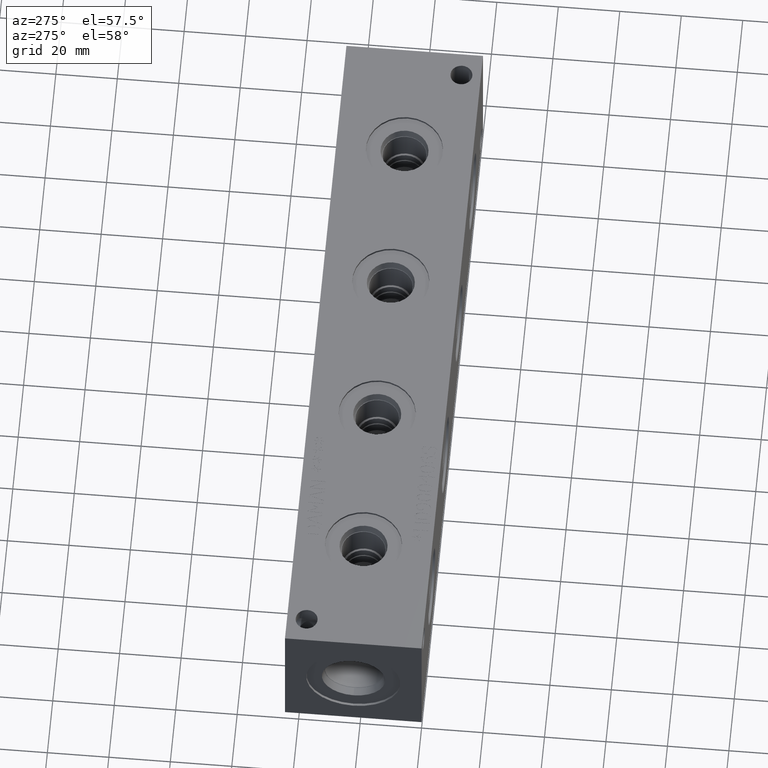
[diagram: clean part render]
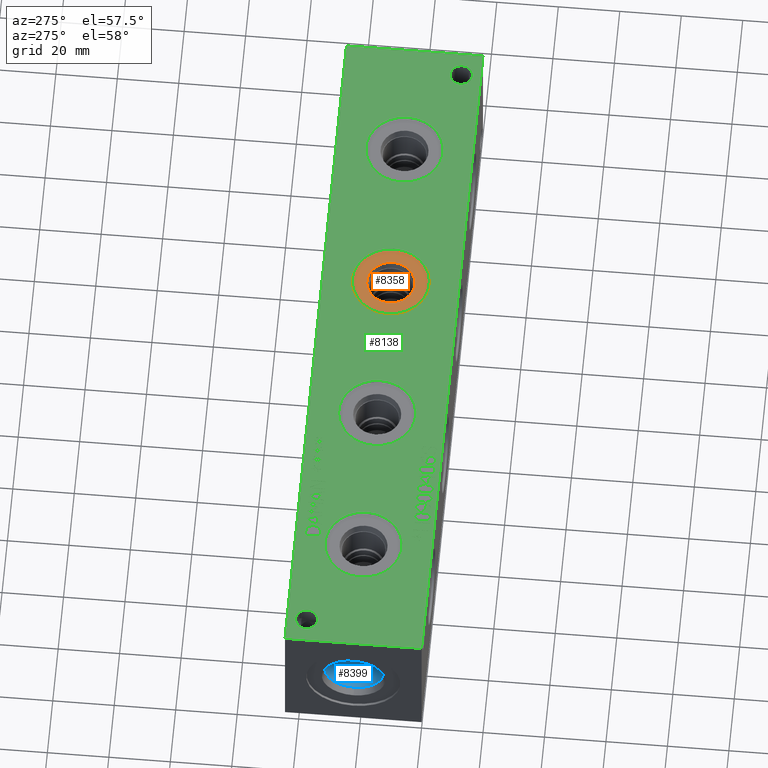
[diagram: same view with three faces highlighted in distinct colors, each labeled with its STEP entity id]
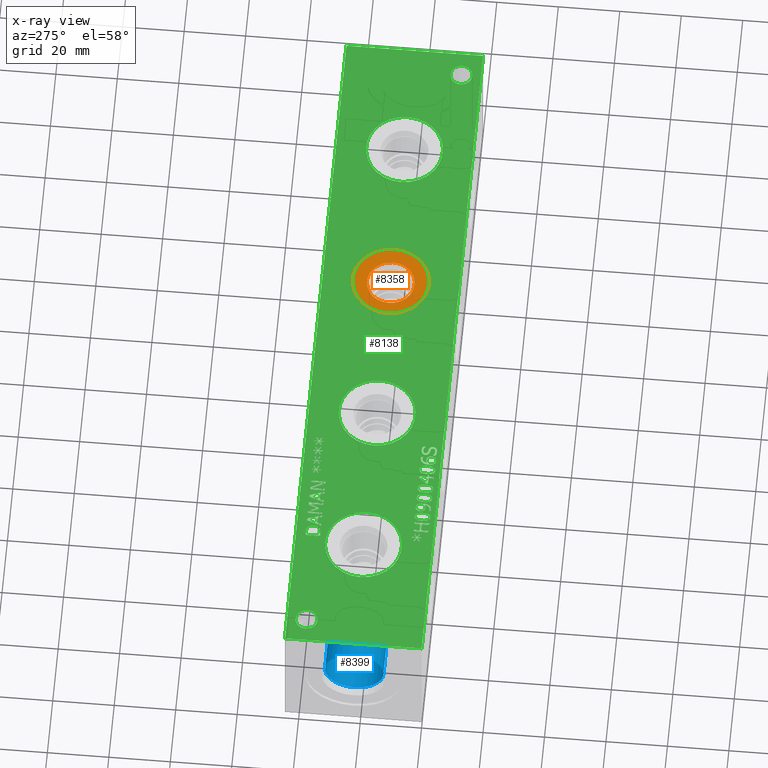
[diagram: x-ray of the same camera — body ghosted, the three highlighted faces saturated]
A machine part, auxiliary view with three faces highlighted in distinct colors.
The next image is the same camera in x-ray (body ghosted, the three faces saturated) — at least one of them is partly hidden behind the body in this view.
Their STEP definitions:

[orange] entity #8358 — the highlighted planar face has unit normal (0, 0, -1).
#248=CIRCLE('',#8836,12.5095);
#249=CIRCLE('',#8837,12.5095);
#250=CIRCLE('',#8839,7.79780000000001);
#251=CIRCLE('',#8840,7.79780000000001);
#371=FACE_BOUND('',#1610,.T.);
#1127=FACE_OUTER_BOUND('',#1609,.T.);
#1609=EDGE_LOOP('',(#7151,#7152));
#1610=EDGE_LOOP('',(#7153,#7154));
#3829=VERTEX_POINT('',#14463);
#3830=VERTEX_POINT('',#14465);
#3831=VERTEX_POINT('',#14469);
#3832=VERTEX_POINT('',#14470);
#4965=EDGE_CURVE('',#3829,#3830,#248,.T.);
#4966=EDGE_CURVE('',#3830,#3829,#249,.T.);
#4967=EDGE_CURVE('',#3831,#3832,#250,.T.);
#4968=EDGE_CURVE('',#3832,#3831,#251,.T.);
#7151=ORIENTED_EDGE('',*,*,#4966,.F.);
#7152=ORIENTED_EDGE('',*,*,#4965,.F.);
#7153=ORIENTED_EDGE('',*,*,#4967,.T.);
#7154=ORIENTED_EDGE('',*,*,#4968,.T.);
#7652=PLANE('',#8838);
#8358=ADVANCED_FACE('',(#1127,#371),#7652,.F.);
#8836=AXIS2_PLACEMENT_3D('',#14466,#10467,#10468);
#8837=AXIS2_PLACEMENT_3D('',#14467,#10469,#10470);
#8838=AXIS2_PLACEMENT_3D('',#14468,#10471,#10472);
#8839=AXIS2_PLACEMENT_3D('',#14471,#10473,#10474);
#8840=AXIS2_PLACEMENT_3D('',#14472,#10475,#10476);
#10467=DIRECTION('center_axis',(0.,0.,-1.));
#10468=DIRECTION('ref_axis',(1.,0.,0.));
#10469=DIRECTION('center_axis',(0.,0.,-1.));
#10470=DIRECTION('ref_axis',(1.,0.,0.));
#10471=DIRECTION('center_axis',(0.,0.,-1.));
#10472=DIRECTION('ref_axis',(-1.,0.,0.));
#10473=DIRECTION('center_axis',(0.,0.,-1.));
#10474=DIRECTION('ref_axis',(1.,0.,0.));
#10475=DIRECTION('center_axis',(0.,0.,-1.));
#10476=DIRECTION('ref_axis',(1.,0.,0.));
#14463=CARTESIAN_POINT('',(127.1905,22.225,43.6626));
#14465=CARTESIAN_POINT('',(152.2095,22.225,43.6626));
#14466=CARTESIAN_POINT('Origin',(139.7,22.225,43.6626));
#14467=CARTESIAN_POINT('Origin',(139.7,22.225,43.6626));
#14468=CARTESIAN_POINT('Origin',(147.4978,22.225,43.6626));
#14469=CARTESIAN_POINT('',(147.4978,22.225,43.6626));
#14470=CARTESIAN_POINT('',(131.9022,22.225,43.6626));
#14471=CARTESIAN_POINT('Origin',(139.7,22.225,43.6626));
#14472=CARTESIAN_POINT('Origin',(139.7,22.225,43.6626));

[blue] entity #8399 — the highlighted cylindrical surface (bore or boss wall) has radius 9.525 mm, axis along (-1, 0, 0).
#127=CYLINDRICAL_SURFACE('',#8944,9.525);
#312=CIRCLE('',#8941,9.525);
#313=CIRCLE('',#8942,9.525);
#315=CIRCLE('',#8945,9.525);
#316=CIRCLE('',#8946,9.525);
#1168=FACE_OUTER_BOUND('',#1660,.T.);
#1660=EDGE_LOOP('',(#7357,#7358,#7359,#7360,#7361,#7362));
#2393=LINE('',#14676,#3114);
#3114=VECTOR('',#10718,9.525);
#3895=VERTEX_POINT('',#14666);
#3896=VERTEX_POINT('',#14667);
#3898=VERTEX_POINT('',#14673);
#3899=VERTEX_POINT('',#14674);
#5060=EDGE_CURVE('',#3895,#3896,#312,.T.);
#5061=EDGE_CURVE('',#3896,#3895,#313,.T.);
#5063=EDGE_CURVE('',#3898,#3899,#315,.T.);
#5064=EDGE_CURVE('',#3898,#3896,#2393,.T.);
#5065=EDGE_CURVE('',#3899,#3898,#316,.T.);
#7357=ORIENTED_EDGE('',*,*,#5063,.F.);
#7358=ORIENTED_EDGE('',*,*,#5064,.T.);
#7359=ORIENTED_EDGE('',*,*,#5060,.F.);
#7360=ORIENTED_EDGE('',*,*,#5061,.F.);
#7361=ORIENTED_EDGE('',*,*,#5064,.F.);
#7362=ORIENTED_EDGE('',*,*,#5065,.F.);
#8399=ADVANCED_FACE('',(#1168),#127,.F.);
#8941=AXIS2_PLACEMENT_3D('',#14668,#10708,#10709);
#8942=AXIS2_PLACEMENT_3D('',#14669,#10710,#10711);
#8944=AXIS2_PLACEMENT_3D('',#14672,#10714,#10715);
#8945=AXIS2_PLACEMENT_3D('',#14675,#10716,#10717);
#8946=AXIS2_PLACEMENT_3D('',#14677,#10719,#10720);
#10708=DIRECTION('center_axis',(-1.,0.,0.));
#10709=DIRECTION('ref_axis',(0.,1.,0.));
#10710=DIRECTION('center_axis',(-1.,0.,0.));
#10711=DIRECTION('ref_axis',(0.,1.,0.));
#10714=DIRECTION('center_axis',(-1.,0.,0.));
#10715=DIRECTION('ref_axis',(0.,1.,0.));
#10716=DIRECTION('center_axis',(1.,0.,0.));
#10717=DIRECTION('ref_axis',(0.,1.,0.));
#10718=DIRECTION('',(1.,0.,0.));
#10719=DIRECTION('center_axis',(1.,0.,0.));
#10720=DIRECTION('ref_axis',(0.,1.,0.));
#14666=CARTESIAN_POINT('',(15.0622,31.75,22.225));
#14667=CARTESIAN_POINT('',(15.0622,12.7,22.225));
#14668=CARTESIAN_POINT('Origin',(15.0622,22.225,22.225));
#14669=CARTESIAN_POINT('Origin',(15.0622,22.225,22.225));
#14672=CARTESIAN_POINT('Origin',(7.5311,22.225,22.225));
#14673=CARTESIAN_POINT('',(3.4036,12.7,22.225));
#14674=CARTESIAN_POINT('',(3.4036,22.225,12.7));
#14675=CARTESIAN_POINT('Origin',(3.4036,22.225,22.225));
#14676=CARTESIAN_POINT('',(7.5311,12.7,22.225));
#14677=CARTESIAN_POINT('Origin',(3.4036,22.225,22.225));

[green] entity #8138 — the highlighted planar face has unit normal (0, 0, 1).
#131=CIRCLE('',#8489,3.5687);
#132=CIRCLE('',#8490,3.5687);
#133=CIRCLE('',#8491,3.5687);
#134=CIRCLE('',#8492,3.5687);
#135=CIRCLE('',#8493,12.5095);
#136=CIRCLE('',#8494,12.5095);
#137=CIRCLE('',#8495,12.5095);
#138=CIRCLE('',#8496,12.5095);
#139=CIRCLE('',#8497,12.5095);
#140=CIRCLE('',#8498,12.5095);
#141=CIRCLE('',#8499,12.5095);
#142=CIRCLE('',#8500,12.5095);
#334=FACE_BOUND('',#1353,.T.);
#335=FACE_BOUND('',#1354,.T.);
#336=FACE_BOUND('',#1355,.T.);
#337=FACE_BOUND('',#1356,.T.);
#338=FACE_BOUND('',#1357,.T.);
#339=FACE_BOUND('',#1358,.T.);
#340=FACE_BOUND('',#1359,.T.);
#341=FACE_BOUND('',#1360,.T.);
#342=FACE_BOUND('',#1361,.T.);
#343=FACE_BOUND('',#1362,.T.);
#344=FACE_BOUND('',#1363,.T.);
#345=FACE_BOUND('',#1364,.T.);
#346=FACE_BOUND('',#1365,.T.);
#347=FACE_BOUND('',#1366,.T.);
#348=FACE_BOUND('',#1367,.T.);
#349=FACE_BOUND('',#1368,.T.);
#350=FACE_BOUND('',#1369,.T.);
#351=FACE_BOUND('',#1370,.T.);
#352=FACE_BOUND('',#1371,.T.);
#353=FACE_BOUND('',#1372,.T.);
#354=FACE_BOUND('',#1373,.T.);
#355=FACE_BOUND('',#1374,.T.);
#356=FACE_BOUND('',#1375,.T.);
#357=FACE_BOUND('',#1376,.T.);
#358=FACE_BOUND('',#1377,.T.);
#410=B_SPLINE_CURVE_WITH_KNOTS('',2,(#11123,#11124,#11125,#11126),
 .UNSPECIFIED.,.F.,.F.,(3,1,3),(0.,1.,2.),.UNSPECIFIED.);
#412=B_SPLINE_CURVE_WITH_KNOTS('',2,(#11144,#11145,#11146,#11147),
 .UNSPECIFIED.,.F.,.F.,(3,1,3),(0.,1.,2.),.UNSPECIFIED.);
#414=B_SPLINE_CURVE_WITH_KNOTS('',2,(#11163,#11164,#11165,#11166),
 .UNSPECIFIED.,.F.,.F.,(3,1,3),(0.,1.,2.),.UNSPECIFIED.);
#416=B_SPLINE_CURVE_WITH_KNOTS('',2,(#11181,#11182,#11183,#11184),
 .UNSPECIFIED.,.F.,.F.,(3,1,3),(0.,1.,2.),.UNSPECIFIED.);
#432=B_SPLINE_CURVE_WITH_KNOTS('',2,(#11333,#11334,#11335,#11336),
 .UNSPECIFIED.,.F.,.F.,(3,1,3),(0.,1.,2.),.UNSPECIFIED.);
#434=B_SPLINE_CURVE_WITH_KNOTS('',2,(#11354,#11355,#11356,#11357),
 .UNSPECIFIED.,.F.,.F.,(3,1,3),(0.,1.,2.),.UNSPECIFIED.);
#436=B_SPLINE_CURVE_WITH_KNOTS('',2,(#11373,#11374,#11375,#11376),
 .UNSPECIFIED.,.F.,.F.,(3,1,3),(0.,1.,2.),.UNSPECIFIED.);
#438=B_SPLINE_CURVE_WITH_KNOTS('',2,(#11392,#11393,#11394,#11395),
 .UNSPECIFIED.,.F.,.F.,(3,1,3),(0.,1.,2.),.UNSPECIFIED.);
#440=B_SPLINE_CURVE_WITH_KNOTS('',2,(#11411,#11412,#11413,#11414),
 .UNSPECIFIED.,.F.,.F.,(3,1,3),(0.,1.,2.),.UNSPECIFIED.);
#442=B_SPLINE_CURVE_WITH_KNOTS('',2,(#11442,#11443,#11444,#11445),
 .UNSPECIFIED.,.F.,.F.,(3,1,3),(0.,1.,2.),.UNSPECIFIED.);
#444=B_SPLINE_CURVE_WITH_KNOTS('',2,(#11461,#11462,#11463,#11464),
 .UNSPECIFIED.,.F.,.F.,(3,1,3),(0.,1.,2.),.UNSPECIFIED.);
#446=B_SPLINE_CURVE_WITH_KNOTS('',2,(#11480,#11481,#11482,#11483),
 .UNSPECIFIED.,.F.,.F.,(3,1,3),(0.,1.,2.),.UNSPECIFIED.);
#448=B_SPLINE_CURVE_WITH_KNOTS('',2,(#11499,#11500,#11501,#11502),
 .UNSPECIFIED.,.F.,.F.,(3,1,3),(0.,1.,2.),.UNSPECIFIED.);
#450=B_SPLINE_CURVE_WITH_KNOTS('',2,(#11518,#11519,#11520,#11521),
 .UNSPECIFIED.,.F.,.F.,(3,1,3),(0.,1.,2.),.UNSPECIFIED.);
#452=B_SPLINE_CURVE_WITH_KNOTS('',2,(#11537,#11538,#11539,#11540),
 .UNSPECIFIED.,.F.,.F.,(3,1,3),(0.,1.,2.),.UNSPECIFIED.);
#454=B_SPLINE_CURVE_WITH_KNOTS('',2,(#11555,#11556,#11557,#11558),
 .UNSPECIFIED.,.F.,.F.,(3,1,3),(0.,1.,2.),.UNSPECIFIED.);
#472=B_SPLINE_CURVE_WITH_KNOTS('',2,(#11726,#11727,#11728,#11729),
 .UNSPECIFIED.,.F.,.F.,(3,1,3),(0.,1.,2.),.UNSPECIFIED.);
#474=B_SPLINE_CURVE_WITH_KNOTS('',2,(#11747,#11748,#11749,#11750),
 .UNSPECIFIED.,.F.,.F.,(3,1,3),(0.,1.,2.),.UNSPECIFIED.);
#476=B_SPLINE_CURVE_WITH_KNOTS('',2,(#11766,#11767,#11768,#11769),
 .UNSPECIFIED.,.F.,.F.,(3,1,3),(0.,1.,2.),.UNSPECIFIED.);
#478=B_SPLINE_CURVE_WITH_KNOTS('',2,(#11784,#11785,#11786,#11787),
 .UNSPECIFIED.,.F.,.F.,(3,1,3),(0.,1.,2.),.UNSPECIFIED.);
#496=B_SPLINE_CURVE_WITH_KNOTS('',2,(#11955,#11956,#11957,#11958),
 .UNSPECIFIED.,.F.,.F.,(3,1,3),(0.,1.,2.),.UNSPECIFIED.);
#498=B_SPLINE_CURVE_WITH_KNOTS('',2,(#11976,#11977,#11978,#11979),
 .UNSPECIFIED.,.F.,.F.,(3,1,3),(0.,1.,2.),.UNSPECIFIED.);
#500=B_SPLINE_CURVE_WITH_KNOTS('',2,(#11995,#11996,#11997,#11998),
 .UNSPECIFIED.,.F.,.F.,(3,1,3),(0.,1.,2.),.UNSPECIFIED.);
#502=B_SPLINE_CURVE_WITH_KNOTS('',2,(#12013,#12014,#12015,#12016),
 .UNSPECIFIED.,.F.,.F.,(3,1,3),(0.,1.,2.),.UNSPECIFIED.);
#520=B_SPLINE_CURVE_WITH_KNOTS('',2,(#12269,#12270,#12271,#12272),
 .UNSPECIFIED.,.F.,.F.,(3,1,3),(0.,1.,2.),.UNSPECIFIED.);
#522=B_SPLINE_CURVE_WITH_KNOTS('',2,(#12290,#12291,#12292,#12293),
 .UNSPECIFIED.,.F.,.F.,(3,1,3),(0.,1.,2.),.UNSPECIFIED.);
#524=B_SPLINE_CURVE_WITH_KNOTS('',2,(#12309,#12310,#12311,#12312),
 .UNSPECIFIED.,.F.,.F.,(3,1,3),(0.,1.,2.),.UNSPECIFIED.);
#526=B_SPLINE_CURVE_WITH_KNOTS('',2,(#12327,#12328,#12329,#12330),
 .UNSPECIFIED.,.F.,.F.,(3,1,3),(0.,1.,2.),.UNSPECIFIED.);
#542=B_SPLINE_CURVE_WITH_KNOTS('',2,(#12479,#12480,#12481,#12482),
 .UNSPECIFIED.,.F.,.F.,(3,1,3),(0.,1.,2.),.UNSPECIFIED.);
#544=B_SPLINE_CURVE_WITH_KNOTS('',2,(#12500,#12501,#12502,#12503),
 .UNSPECIFIED.,.F.,.F.,(3,1,3),(0.,1.,2.),.UNSPECIFIED.);
#546=B_SPLINE_CURVE_WITH_KNOTS('',2,(#12519,#12520,#12521,#12522),
 .UNSPECIFIED.,.F.,.F.,(3,1,3),(0.,1.,2.),.UNSPECIFIED.);
#548=B_SPLINE_CURVE_WITH_KNOTS('',2,(#12538,#12539,#12540,#12541),
 .UNSPECIFIED.,.F.,.F.,(3,1,3),(0.,1.,2.),.UNSPECIFIED.);
#550=B_SPLINE_CURVE_WITH_KNOTS('',2,(#12557,#12558,#12559,#12560),
 .UNSPECIFIED.,.F.,.F.,(3,1,3),(0.,1.,2.),.UNSPECIFIED.);
#552=B_SPLINE_CURVE_WITH_KNOTS('',2,(#12588,#12589,#12590,#12591),
 .UNSPECIFIED.,.F.,.F.,(3,1,3),(0.,1.,2.),.UNSPECIFIED.);
#554=B_SPLINE_CURVE_WITH_KNOTS('',2,(#12607,#12608,#12609,#12610),
 .UNSPECIFIED.,.F.,.F.,(3,1,3),(0.,1.,2.),.UNSPECIFIED.);
#556=B_SPLINE_CURVE_WITH_KNOTS('',2,(#12626,#12627,#12628,#12629),
 .UNSPECIFIED.,.F.,.F.,(3,1,3),(0.,1.,2.),.UNSPECIFIED.);
#558=B_SPLINE_CURVE_WITH_KNOTS('',2,(#12645,#12646,#12647,#12648),
 .UNSPECIFIED.,.F.,.F.,(3,1,3),(0.,1.,2.),.UNSPECIFIED.);
#560=B_SPLINE_CURVE_WITH_KNOTS('',2,(#12664,#12665,#12666,#12667),
 .UNSPECIFIED.,.F.,.F.,(3,1,3),(0.,1.,2.),.UNSPECIFIED.);
#562=B_SPLINE_CURVE_WITH_KNOTS('',2,(#12683,#12684,#12685,#12686),
 .UNSPECIFIED.,.F.,.F.,(3,1,3),(0.,1.,2.),.UNSPECIFIED.);
#564=B_SPLINE_CURVE_WITH_KNOTS('',2,(#12701,#12702,#12703,#12704),
 .UNSPECIFIED.,.F.,.F.,(3,1,3),(0.,1.,2.),.UNSPECIFIED.);
#566=B_SPLINE_CURVE_WITH_KNOTS('',2,(#12720,#12721,#12722,#12723),
 .UNSPECIFIED.,.F.,.F.,(3,1,3),(0.,1.,2.),.UNSPECIFIED.);
#568=B_SPLINE_CURVE_WITH_KNOTS('',2,(#12741,#12742,#12743,#12744),
 .UNSPECIFIED.,.F.,.F.,(3,1,3),(0.,1.,2.),.UNSPECIFIED.);
#570=B_SPLINE_CURVE_WITH_KNOTS('',2,(#12760,#12761,#12762,#12763),
 .UNSPECIFIED.,.F.,.F.,(3,1,3),(0.,1.,2.),.UNSPECIFIED.);
#572=B_SPLINE_CURVE_WITH_KNOTS('',2,(#12779,#12780,#12781,#12782),
 .UNSPECIFIED.,.F.,.F.,(3,1,3),(0.,1.,2.),.UNSPECIFIED.);
#574=B_SPLINE_CURVE_WITH_KNOTS('',2,(#12798,#12799,#12800,#12801),
 .UNSPECIFIED.,.F.,.F.,(3,1,3),(0.,1.,2.),.UNSPECIFIED.);
#576=B_SPLINE_CURVE_WITH_KNOTS('',2,(#12817,#12818,#12819,#12820),
 .UNSPECIFIED.,.F.,.F.,(3,1,3),(0.,1.,2.),.UNSPECIFIED.);
#578=B_SPLINE_CURVE_WITH_KNOTS('',2,(#12836,#12837,#12838,#12839),
 .UNSPECIFIED.,.F.,.F.,(3,1,3),(0.,1.,2.),.UNSPECIFIED.);
#580=B_SPLINE_CURVE_WITH_KNOTS('',2,(#12867,#12868,#12869,#12870),
 .UNSPECIFIED.,.F.,.F.,(3,1,3),(0.,1.,2.),.UNSPECIFIED.);
#582=B_SPLINE_CURVE_WITH_KNOTS('',2,(#12886,#12887,#12888,#12889),
 .UNSPECIFIED.,.F.,.F.,(3,1,3),(0.,1.,2.),.UNSPECIFIED.);
#584=B_SPLINE_CURVE_WITH_KNOTS('',2,(#12905,#12906,#12907,#12908),
 .UNSPECIFIED.,.F.,.F.,(3,1,3),(0.,1.,2.),.UNSPECIFIED.);
#586=B_SPLINE_CURVE_WITH_KNOTS('',2,(#12924,#12925,#12926,#12927),
 .UNSPECIFIED.,.F.,.F.,(3,1,3),(0.,1.,2.),.UNSPECIFIED.);
#588=B_SPLINE_CURVE_WITH_KNOTS('',2,(#12943,#12944,#12945,#12946),
 .UNSPECIFIED.,.F.,.F.,(3,1,3),(0.,1.,2.),.UNSPECIFIED.);
#590=B_SPLINE_CURVE_WITH_KNOTS('',2,(#12962,#12963,#12964,#12965),
 .UNSPECIFIED.,.F.,.F.,(3,1,3),(0.,1.,2.),.UNSPECIFIED.);
#592=B_SPLINE_CURVE_WITH_KNOTS('',2,(#12981,#12982,#12983,#12984),
 .UNSPECIFIED.,.F.,.F.,(3,1,3),(0.,1.,2.),.UNSPECIFIED.);
#594=B_SPLINE_CURVE_WITH_KNOTS('',2,(#13000,#13001,#13002,#13003),
 .UNSPECIFIED.,.F.,.F.,(3,1,3),(0.,1.,2.),.UNSPECIFIED.);
#596=B_SPLINE_CURVE_WITH_KNOTS('',2,(#13030,#13031,#13032,#13033),
 .UNSPECIFIED.,.F.,.F.,(3,1,3),(0.,1.,2.),.UNSPECIFIED.);
#598=B_SPLINE_CURVE_WITH_KNOTS('',2,(#13164,#13165,#13166,#13167),
 .UNSPECIFIED.,.F.,.F.,(3,1,3),(0.,1.,2.),.UNSPECIFIED.);
#599=B_SPLINE_CURVE_WITH_KNOTS('',2,(#13169,#13170,#13171,#13172),
 .UNSPECIFIED.,.F.,.F.,(3,1,3),(0.,1.,2.),.UNSPECIFIED.);
#600=B_SPLINE_CURVE_WITH_KNOTS('',2,(#13174,#13175,#13176,#13177),
 .UNSPECIFIED.,.F.,.F.,(3,1,3),(0.,1.,2.),.UNSPECIFIED.);
#601=B_SPLINE_CURVE_WITH_KNOTS('',2,(#13184,#13185,#13186,#13187),
 .UNSPECIFIED.,.F.,.F.,(3,1,3),(0.,1.,2.),.UNSPECIFIED.);
#907=FACE_OUTER_BOUND('',#1352,.T.);
#1352=EDGE_LOOP('',(#5859,#5860,#5861,#5862));
#1353=EDGE_LOOP('',(#5863,#5864,#5865,#5866,#5867,#5868,#5869,#5870,#5871,
#5872,#5873,#5874,#5875,#5876,#5877,#5878,#5879,#5880));
#1354=EDGE_LOOP('',(#5881,#5882,#5883,#5884,#5885,#5886,#5887,#5888,#5889,
#5890,#5891,#5892,#5893,#5894,#5895,#5896,#5897,#5898));
#1355=EDGE_LOOP('',(#5899,#5900,#5901,#5902,#5903,#5904,#5905,#5906,#5907,
#5908,#5909,#5910,#5911));
#1356=EDGE_LOOP('',(#5912,#5913,#5914,#5915,#5916,#5917,#5918,#5919));
#1357=EDGE_LOOP('',(#5920,#5921,#5922,#5923,#5924,#5925,#5926));
#1358=EDGE_LOOP('',(#5927,#5928,#5929,#5930,#5931,#5932,#5933,#5934));
#1359=EDGE_LOOP('',(#5935,#5936,#5937,#5938,#5939,#5940,#5941,#5942,#5943,
#5944));
#1360=EDGE_LOOP('',(#5945,#5946,#5947,#5948,#5949,#5950,#5951,#5952,#5953,
#5954,#5955,#5956,#5957,#5958,#5959,#5960,#5961,#5962));
#1361=EDGE_LOOP('',(#5963,#5964,#5965,#5966,#5967,#5968,#5969,#5970,#5971,
#5972,#5973,#5974,#5975,#5976,#5977,#5978,#5979,#5980));
#1362=EDGE_LOOP('',(#5981,#5982));
#1363=EDGE_LOOP('',(#5983,#5984));
#1364=EDGE_LOOP('',(#5985,#5986));
#1365=EDGE_LOOP('',(#5987,#5988));
#1366=EDGE_LOOP('',(#5989,#5990));
#1367=EDGE_LOOP('',(#5991,#5992));
#1368=EDGE_LOOP('',(#5993,#5994,#5995,#5996,#5997,#5998,#5999,#6000,#6001,
#6002,#6003,#6004,#6005,#6006,#6007,#6008,#6009,#6010,#6011,#6012));
#1369=EDGE_LOOP('',(#6013,#6014,#6015,#6016,#6017,#6018,#6019,#6020,#6021,
#6022,#6023,#6024,#6025,#6026));
#1370=EDGE_LOOP('',(#6027,#6028,#6029,#6030));
#1371=EDGE_LOOP('',(#6031,#6032,#6033,#6034,#6035,#6036,#6037,#6038,#6039,
#6040,#6041));
#1372=EDGE_LOOP('',(#6042,#6043,#6044,#6045));
#1373=EDGE_LOOP('',(#6046,#6047,#6048,#6049));
#1374=EDGE_LOOP('',(#6050,#6051,#6052,#6053,#6054,#6055,#6056,#6057,#6058,
#6059,#6060,#6061,#6062,#6063));
#1375=EDGE_LOOP('',(#6064,#6065,#6066,#6067));
#1376=EDGE_LOOP('',(#6068,#6069,#6070,#6071,#6072,#6073,#6074,#6075,#6076,
#6077,#6078,#6079,#6080,#6081,#6082,#6083,#6084,#6085));
#1377=EDGE_LOOP('',(#6086,#6087,#6088,#6089,#6090,#6091,#6092,#6093,#6094,
#6095,#6096,#6097));
#1686=LINE('',#10782,#2407);
#1690=LINE('',#10790,#2411);
#1693=LINE('',#10796,#2414);
#1696=LINE('',#10802,#2417);
#1699=LINE('',#10808,#2420);
#1702=LINE('',#10814,#2423);
#1705=LINE('',#10820,#2426);
#1708=LINE('',#10826,#2429);
#1711=LINE('',#10832,#2432);
#1714=LINE('',#10838,#2435);
#1717=LINE('',#10844,#2438);
#1720=LINE('',#10849,#2441);
#1722=LINE('',#10855,#2443);
#1726=LINE('',#10863,#2447);
#1729=LINE('',#10869,#2450);
#1732=LINE('',#10875,#2453);
#1735=LINE('',#10881,#2456);
#1738=LINE('',#10887,#2459);
#1741=LINE('',#10893,#2462);
#1744=LINE('',#10899,#2465);
#1747=LINE('',#10905,#2468);
#1750=LINE('',#10911,#2471);
#1753=LINE('',#10917,#2474);
#1756=LINE('',#10923,#2477);
#1759=LINE('',#10929,#2480);
#1762=LINE('',#10935,#2483);
#1765=LINE('',#10941,#2486);
#1768=LINE('',#10947,#2489);
#1771=LINE('',#10953,#2492);
#1774=LINE('',#10958,#2495);
#1801=LINE('',#11423,#2522);
#1804=LINE('',#11429,#2525);
#1846=LINE('',#12043,#2567);
#1850=LINE('',#12051,#2571);
#1853=LINE('',#12057,#2574);
#1856=LINE('',#12063,#2577);
#1859=LINE('',#12069,#2580);
#1862=LINE('',#12075,#2583);
#1865=LINE('',#12081,#2586);
#1868=LINE('',#12087,#2589);
#1871=LINE('',#12093,#2592);
#1874=LINE('',#12099,#2595);
#1877=LINE('',#12104,#2598);
#1904=LINE('',#12569,#2625);
#1907=LINE('',#12575,#2628);
#1924=LINE('',#12848,#2645);
#1927=LINE('',#12854,#2648);
#1938=LINE('',#13012,#2659);
#1941=LINE('',#13018,#2662);
#1944=LINE('',#13042,#2665);
#1945=LINE('',#13044,#2666);
#1946=LINE('',#13046,#2667);
#1947=LINE('',#13047,#2668);
#1948=LINE('',#13050,#2669);
#1949=LINE('',#13052,#2670);
#1950=LINE('',#13054,#2671);
#1951=LINE('',#13056,#2672);
#1952=LINE('',#13058,#2673);
#1953=LINE('',#13060,#2674);
#1954=LINE('',#13062,#2675);
#1955=LINE('',#13064,#2676);
#1956=LINE('',#13066,#2677);
#1957=LINE('',#13068,#2678);
#1958=LINE('',#13070,#2679);
#1959=LINE('',#13072,#2680);
#1960=LINE('',#13074,#2681);
#1961=LINE('',#13076,#2682);
#1962=LINE('',#13078,#2683);
#1963=LINE('',#13080,#2684);
#1964=LINE('',#13082,#2685);
#1965=LINE('',#13083,#2686);
#1966=LINE('',#13086,#2687);
#1967=LINE('',#13088,#2688);
#1968=LINE('',#13090,#2689);
#1969=LINE('',#13092,#2690);
#1970=LINE('',#13094,#2691);
#1971=LINE('',#13096,#2692);
#1972=LINE('',#13098,#2693);
#1973=LINE('',#13100,#2694);
#1974=LINE('',#13102,#2695);
#1975=LINE('',#13104,#2696);
#1976=LINE('',#13106,#2697);
#1977=LINE('',#13108,#2698);
#1978=LINE('',#13110,#2699);
#1979=LINE('',#13112,#2700);
#1980=LINE('',#13114,#2701);
#1981=LINE('',#13116,#2702);
#1982=LINE('',#13118,#2703);
#1983=LINE('',#13119,#2704);
#1984=LINE('',#13122,#2705);
#1985=LINE('',#13124,#2706);
#1986=LINE('',#13126,#2707);
#1987=LINE('',#13128,#2708);
#1988=LINE('',#13130,#2709);
#1989=LINE('',#13132,#2710);
#1990=LINE('',#13134,#2711);
#1991=LINE('',#13136,#2712);
#1992=LINE('',#13138,#2713);
#1993=LINE('',#13140,#2714);
#1994=LINE('',#13142,#2715);
#1995=LINE('',#13144,#2716);
#1996=LINE('',#13145,#2717);
#1997=LINE('',#13148,#2718);
#1998=LINE('',#13150,#2719);
#1999=LINE('',#13152,#2720);
#2000=LINE('',#13154,#2721);
#2001=LINE('',#13156,#2722);
#2002=LINE('',#13158,#2723);
#2003=LINE('',#13160,#2724);
#2004=LINE('',#13161,#2725);
#2005=LINE('',#13179,#2726);
#2006=LINE('',#13181,#2727);
#2007=LINE('',#13183,#2728);
#2008=LINE('',#13190,#2729);
#2009=LINE('',#13192,#2730);
#2010=LINE('',#13194,#2731);
#2011=LINE('',#13196,#2732);
#2012=LINE('',#13198,#2733);
#2013=LINE('',#13200,#2734);
#2014=LINE('',#13202,#2735);
#2015=LINE('',#13203,#2736);
#2016=LINE('',#13206,#2737);
#2017=LINE('',#13208,#2738);
#2018=LINE('',#13210,#2739);
#2019=LINE('',#13212,#2740);
#2020=LINE('',#13214,#2741);
#2021=LINE('',#13216,#2742);
#2022=LINE('',#13218,#2743);
#2023=LINE('',#13220,#2744);
#2024=LINE('',#13222,#2745);
#2025=LINE('',#13223,#2746);
#2026=LINE('',#13226,#2747);
#2027=LINE('',#13228,#2748);
#2028=LINE('',#13230,#2749);
#2029=LINE('',#13232,#2750);
#2030=LINE('',#13234,#2751);
#2031=LINE('',#13236,#2752);
#2032=LINE('',#13238,#2753);
#2033=LINE('',#13240,#2754);
#2034=LINE('',#13242,#2755);
#2035=LINE('',#13244,#2756);
#2036=LINE('',#13246,#2757);
#2037=LINE('',#13248,#2758);
#2038=LINE('',#13250,#2759);
#2039=LINE('',#13252,#2760);
#2040=LINE('',#13254,#2761);
#2041=LINE('',#13256,#2762);
#2042=LINE('',#13258,#2763);
#2043=LINE('',#13259,#2764);
#2044=LINE('',#13262,#2765);
#2045=LINE('',#13264,#2766);
#2046=LINE('',#13266,#2767);
#2047=LINE('',#13268,#2768);
#2048=LINE('',#13270,#2769);
#2049=LINE('',#13272,#2770);
#2050=LINE('',#13274,#2771);
#2051=LINE('',#13276,#2772);
#2052=LINE('',#13278,#2773);
#2053=LINE('',#13280,#2774);
#2054=LINE('',#13282,#2775);
#2055=LINE('',#13284,#2776);
#2056=LINE('',#13286,#2777);
#2057=LINE('',#13288,#2778);
#2058=LINE('',#13290,#2779);
#2059=LINE('',#13292,#2780);
#2060=LINE('',#13294,#2781);
#2061=LINE('',#13295,#2782);
#2407=VECTOR('',#8973,10.);
#2411=VECTOR('',#8979,10.);
#2414=VECTOR('',#8984,10.);
#2417=VECTOR('',#8989,10.);
#2420=VECTOR('',#8994,10.);
#2423=VECTOR('',#8999,10.);
#2426=VECTOR('',#9004,10.);
#2429=VECTOR('',#9009,10.);
#2432=VECTOR('',#9014,10.);
#2435=VECTOR('',#9019,10.);
#2438=VECTOR('',#9024,10.);
#2441=VECTOR('',#9029,10.);
#2443=VECTOR('',#9035,10.);
#2447=VECTOR('',#9041,10.);
#2450=VECTOR('',#9046,10.);
#2453=VECTOR('',#9051,10.);
#2456=VECTOR('',#9056,10.);
#2459=VECTOR('',#9061,10.);
#2462=VECTOR('',#9066,10.);
#2465=VECTOR('',#9071,10.);
#2468=VECTOR('',#9076,10.);
#2471=VECTOR('',#9081,10.);
#2474=VECTOR('',#9086,10.);
#2477=VECTOR('',#9091,10.);
#2480=VECTOR('',#9096,10.);
#2483=VECTOR('',#9101,10.);
#2486=VECTOR('',#9106,10.);
#2489=VECTOR('',#9111,10.);
#2492=VECTOR('',#9116,10.);
#2495=VECTOR('',#9121,10.);
#2522=VECTOR('',#9154,10.);
#2525=VECTOR('',#9159,10.);
#2567=VECTOR('',#9215,10.);
#2571=VECTOR('',#9221,10.);
#2574=VECTOR('',#9226,10.);
#2577=VECTOR('',#9231,10.);
#2580=VECTOR('',#9236,10.);
#2583=VECTOR('',#9241,10.);
#2586=VECTOR('',#9246,10.);
#2589=VECTOR('',#9251,10.);
#2592=VECTOR('',#9256,10.);
#2595=VECTOR('',#9261,10.);
#2598=VECTOR('',#9266,10.);
#2625=VECTOR('',#9299,10.);
#2628=VECTOR('',#9304,10.);
#2645=VECTOR('',#9325,10.);
#2648=VECTOR('',#9330,10.);
#2659=VECTOR('',#9343,10.);
#2662=VECTOR('',#9348,10.);
#2665=VECTOR('',#9355,10.);
#2666=VECTOR('',#9356,10.);
#2667=VECTOR('',#9357,10.);
#2668=VECTOR('',#9358,10.);
#2669=VECTOR('',#9359,10.);
#2670=VECTOR('',#9360,10.);
#2671=VECTOR('',#9361,10.);
#2672=VECTOR('',#9362,10.);
#2673=VECTOR('',#9363,10.);
#2674=VECTOR('',#9364,10.);
#2675=VECTOR('',#9365,10.);
#2676=VECTOR('',#9366,10.);
#2677=VECTOR('',#9367,10.);
#2678=VECTOR('',#9368,10.);
#2679=VECTOR('',#9369,10.);
#2680=VECTOR('',#9370,10.);
#2681=VECTOR('',#9371,10.);
#2682=VECTOR('',#9372,10.);
#2683=VECTOR('',#9373,10.);
#2684=VECTOR('',#9374,10.);
#2685=VECTOR('',#9375,10.);
#2686=VECTOR('',#9376,10.);
#2687=VECTOR('',#9377,10.);
#2688=VECTOR('',#9378,10.);
#2689=VECTOR('',#9379,10.);
#2690=VECTOR('',#9380,10.);
#2691=VECTOR('',#9381,10.);
#2692=VECTOR('',#9382,10.);
#2693=VECTOR('',#9383,10.);
#2694=VECTOR('',#9384,10.);
#2695=VECTOR('',#9385,10.);
#2696=VECTOR('',#9386,10.);
#2697=VECTOR('',#9387,10.);
#2698=VECTOR('',#9388,10.);
#2699=VECTOR('',#9389,10.);
#2700=VECTOR('',#9390,10.);
#2701=VECTOR('',#9391,10.);
#2702=VECTOR('',#9392,10.);
#2703=VECTOR('',#9393,10.);
#2704=VECTOR('',#9394,10.);
#2705=VECTOR('',#9395,10.);
#2706=VECTOR('',#9396,10.);
#2707=VECTOR('',#9397,10.);
#2708=VECTOR('',#9398,10.);
#2709=VECTOR('',#9399,10.);
#2710=VECTOR('',#9400,10.);
#2711=VECTOR('',#9401,10.);
#2712=VECTOR('',#9402,10.);
#2713=VECTOR('',#9403,10.);
#2714=VECTOR('',#9404,10.);
#2715=VECTOR('',#9405,10.);
#2716=VECTOR('',#9406,10.);
#2717=VECTOR('',#9407,10.);
#2718=VECTOR('',#9408,10.);
#2719=VECTOR('',#9409,10.);
#2720=VECTOR('',#9410,10.);
#2721=VECTOR('',#9411,10.);
#2722=VECTOR('',#9412,10.);
#2723=VECTOR('',#9413,10.);
#2724=VECTOR('',#9414,10.);
#2725=VECTOR('',#9415,10.);
#2726=VECTOR('',#9416,10.);
#2727=VECTOR('',#9417,10.);
#2728=VECTOR('',#9418,10.);
#2729=VECTOR('',#9419,10.);
#2730=VECTOR('',#9420,10.);
#2731=VECTOR('',#9421,10.);
#2732=VECTOR('',#9422,10.);
#2733=VECTOR('',#9423,10.);
#2734=VECTOR('',#9424,10.);
#2735=VECTOR('',#9425,10.);
#2736=VECTOR('',#9426,10.);
#2737=VECTOR('',#9427,10.);
#2738=VECTOR('',#9428,10.);
#2739=VECTOR('',#9429,10.);
#2740=VECTOR('',#9430,10.);
#2741=VECTOR('',#9431,10.);
#2742=VECTOR('',#9432,10.);
#2743=VECTOR('',#9433,10.);
#2744=VECTOR('',#9434,10.);
#2745=VECTOR('',#9435,10.);
#2746=VECTOR('',#9436,10.);
#2747=VECTOR('',#9437,10.);
#2748=VECTOR('',#9438,10.);
#2749=VECTOR('',#9439,10.);
#2750=VECTOR('',#9440,10.);
#2751=VECTOR('',#9441,10.);
#2752=VECTOR('',#9442,10.);
#2753=VECTOR('',#9443,10.);
#2754=VECTOR('',#9444,10.);
#2755=VECTOR('',#9445,10.);
#2756=VECTOR('',#9446,10.);
#2757=VECTOR('',#9447,10.);
#2758=VECTOR('',#9448,10.);
#2759=VECTOR('',#9449,10.);
#2760=VECTOR('',#9450,10.);
#2761=VECTOR('',#9451,10.);
#2762=VECTOR('',#9452,10.);
#2763=VECTOR('',#9453,10.);
#2764=VECTOR('',#9454,10.);
#2765=VECTOR('',#9455,10.);
#2766=VECTOR('',#9456,10.);
#2767=VECTOR('',#9457,10.);
#2768=VECTOR('',#9458,10.);
#2769=VECTOR('',#9459,10.);
#2770=VECTOR('',#9460,10.);
#2771=VECTOR('',#9461,10.);
#2772=VECTOR('',#9462,10.);
#2773=VECTOR('',#9463,10.);
#2774=VECTOR('',#9464,10.);
#2775=VECTOR('',#9465,10.);
#2776=VECTOR('',#9466,10.);
#2777=VECTOR('',#9467,10.);
#2778=VECTOR('',#9468,10.);
#2779=VECTOR('',#9469,10.);
#2780=VECTOR('',#9470,10.);
#2781=VECTOR('',#9471,10.);
#2782=VECTOR('',#9472,10.);
#3128=VERTEX_POINT('',#10780);
#3129=VERTEX_POINT('',#10781);
#3132=VERTEX_POINT('',#10789);
#3134=VERTEX_POINT('',#10795);
#3136=VERTEX_POINT('',#10801);
#3138=VERTEX_POINT('',#10807);
#3140=VERTEX_POINT('',#10813);
#3142=VERTEX_POINT('',#10819);
#3144=VERTEX_POINT('',#10825);
#3146=VERTEX_POINT('',#10831);
#3148=VERTEX_POINT('',#10837);
#3150=VERTEX_POINT('',#10843);
#3152=VERTEX_POINT('',#10853);
#3153=VERTEX_POINT('',#10854);
#3156=VERTEX_POINT('',#10862);
#3158=VERTEX_POINT('',#10868);
#3160=VERTEX_POINT('',#10874);
#3162=VERTEX_POINT('',#10880);
#3164=VERTEX_POINT('',#10886);
#3166=VERTEX_POINT('',#10892);
#3168=VERTEX_POINT('',#10898);
#3170=VERTEX_POINT('',#10904);
#3172=VERTEX_POINT('',#10910);
#3174=VERTEX_POINT('',#10916);
#3176=VERTEX_POINT('',#10922);
#3178=VERTEX_POINT('',#10928);
#3180=VERTEX_POINT('',#10934);
#3182=VERTEX_POINT('',#10940);
#3184=VERTEX_POINT('',#10946);
#3186=VERTEX_POINT('',#10952);
#3204=VERTEX_POINT('',#11121);
#3205=VERTEX_POINT('',#11122);
#3208=VERTEX_POINT('',#11143);
#3210=VERTEX_POINT('',#11162);
#3226=VERTEX_POINT('',#11331);
#3227=VERTEX_POINT('',#11332);
#3230=VERTEX_POINT('',#11353);
#3232=VERTEX_POINT('',#11372);
#3234=VERTEX_POINT('',#11391);
#3236=VERTEX_POINT('',#11410);
#3238=VERTEX_POINT('',#11422);
#3240=VERTEX_POINT('',#11428);
#3242=VERTEX_POINT('',#11441);
#3244=VERTEX_POINT('',#11460);
#3246=VERTEX_POINT('',#11479);
#3248=VERTEX_POINT('',#11498);
#3250=VERTEX_POINT('',#11517);
#3252=VERTEX_POINT('',#11536);
#3270=VERTEX_POINT('',#11724);
#3271=VERTEX_POINT('',#11725);
#3274=VERTEX_POINT('',#11746);
#3276=VERTEX_POINT('',#11765);
#3294=VERTEX_POINT('',#11953);
#3295=VERTEX_POINT('',#11954);
#3298=VERTEX_POINT('',#11975);
#3300=VERTEX_POINT('',#11994);
#3308=VERTEX_POINT('',#12041);
#3309=VERTEX_POINT('',#12042);
#3312=VERTEX_POINT('',#12050);
#3314=VERTEX_POINT('',#12056);
#3316=VERTEX_POINT('',#12062);
#3318=VERTEX_POINT('',#12068);
#3320=VERTEX_POINT('',#12074);
#3322=VERTEX_POINT('',#12080);
#3324=VERTEX_POINT('',#12086);
#3326=VERTEX_POINT('',#12092);
#3328=VERTEX_POINT('',#12098);
#3346=VERTEX_POINT('',#12267);
#3347=VERTEX_POINT('',#12268);
#3350=VERTEX_POINT('',#12289);
#3352=VERTEX_POINT('',#12308);
#3368=VERTEX_POINT('',#12477);
#3369=VERTEX_POINT('',#12478);
#3372=VERTEX_POINT('',#12499);
#3374=VERTEX_POINT('',#12518);
#3376=VERTEX_POINT('',#12537);
#3378=VERTEX_POINT('',#12556);
#3380=VERTEX_POINT('',#12568);
#3382=VERTEX_POINT('',#12574);
#3384=VERTEX_POINT('',#12587);
#3386=VERTEX_POINT('',#12606);
#3388=VERTEX_POINT('',#12625);
#3390=VERTEX_POINT('',#12644);
#3392=VERTEX_POINT('',#12663);
#3394=VERTEX_POINT('',#12682);
#3396=VERTEX_POINT('',#12718);
#3397=VERTEX_POINT('',#12719);
#3400=VERTEX_POINT('',#12740);
#3402=VERTEX_POINT('',#12759);
#3404=VERTEX_POINT('',#12778);
#3406=VERTEX_POINT('',#12797);
#3408=VERTEX_POINT('',#12816);
#3410=VERTEX_POINT('',#12835);
#3412=VERTEX_POINT('',#12847);
#3414=VERTEX_POINT('',#12853);
#3416=VERTEX_POINT('',#12866);
#3418=VERTEX_POINT('',#12885);
#3420=VERTEX_POINT('',#12904);
#3422=VERTEX_POINT('',#12923);
#3424=VERTEX_POINT('',#12942);
#3426=VERTEX_POINT('',#12961);
#3428=VERTEX_POINT('',#12980);
#3430=VERTEX_POINT('',#12999);
#3432=VERTEX_POINT('',#13011);
#3434=VERTEX_POINT('',#13017);
#3436=VERTEX_POINT('',#13040);
#3437=VERTEX_POINT('',#13041);
#3438=VERTEX_POINT('',#13043);
#3439=VERTEX_POINT('',#13045);
#3440=VERTEX_POINT('',#13048);
#3441=VERTEX_POINT('',#13049);
#3442=VERTEX_POINT('',#13051);
#3443=VERTEX_POINT('',#13053);
#3444=VERTEX_POINT('',#13055);
#3445=VERTEX_POINT('',#13057);
#3446=VERTEX_POINT('',#13059);
#3447=VERTEX_POINT('',#13061);
#3448=VERTEX_POINT('',#13063);
#3449=VERTEX_POINT('',#13065);
#3450=VERTEX_POINT('',#13067);
#3451=VERTEX_POINT('',#13069);
#3452=VERTEX_POINT('',#13071);
#3453=VERTEX_POINT('',#13073);
#3454=VERTEX_POINT('',#13075);
#3455=VERTEX_POINT('',#13077);
#3456=VERTEX_POINT('',#13079);
#3457=VERTEX_POINT('',#13081);
#3458=VERTEX_POINT('',#13084);
#3459=VERTEX_POINT('',#13085);
#3460=VERTEX_POINT('',#13087);
#3461=VERTEX_POINT('',#13089);
#3462=VERTEX_POINT('',#13091);
#3463=VERTEX_POINT('',#13093);
#3464=VERTEX_POINT('',#13095);
#3465=VERTEX_POINT('',#13097);
#3466=VERTEX_POINT('',#13099);
#3467=VERTEX_POINT('',#13101);
#3468=VERTEX_POINT('',#13103);
#3469=VERTEX_POINT('',#13105);
#3470=VERTEX_POINT('',#13107);
#3471=VERTEX_POINT('',#13109);
#3472=VERTEX_POINT('',#13111);
#3473=VERTEX_POINT('',#13113);
#3474=VERTEX_POINT('',#13115);
#3475=VERTEX_POINT('',#13117);
#3476=VERTEX_POINT('',#13120);
#3477=VERTEX_POINT('',#13121);
#3478=VERTEX_POINT('',#13123);
#3479=VERTEX_POINT('',#13125);
#3480=VERTEX_POINT('',#13127);
#3481=VERTEX_POINT('',#13129);
#3482=VERTEX_POINT('',#13131);
#3483=VERTEX_POINT('',#13133);
#3484=VERTEX_POINT('',#13135);
#3485=VERTEX_POINT('',#13137);
#3486=VERTEX_POINT('',#13139);
#3487=VERTEX_POINT('',#13141);
#3488=VERTEX_POINT('',#13143);
#3489=VERTEX_POINT('',#13146);
#3490=VERTEX_POINT('',#13147);
#3491=VERTEX_POINT('',#13149);
#3492=VERTEX_POINT('',#13151);
#3493=VERTEX_POINT('',#13153);
#3494=VERTEX_POINT('',#13155);
#3495=VERTEX_POINT('',#13157);
#3496=VERTEX_POINT('',#13159);
#3497=VERTEX_POINT('',#13162);
#3498=VERTEX_POINT('',#13163);
#3499=VERTEX_POINT('',#13168);
#3500=VERTEX_POINT('',#13173);
#3501=VERTEX_POINT('',#13178);
#3502=VERTEX_POINT('',#13180);
#3503=VERTEX_POINT('',#13182);
#3504=VERTEX_POINT('',#13188);
#3505=VERTEX_POINT('',#13189);
#3506=VERTEX_POINT('',#13191);
#3507=VERTEX_POINT('',#13193);
#3508=VERTEX_POINT('',#13195);
#3509=VERTEX_POINT('',#13197);
#3510=VERTEX_POINT('',#13199);
#3511=VERTEX_POINT('',#13201);
#3512=VERTEX_POINT('',#13204);
#3513=VERTEX_POINT('',#13205);
#3514=VERTEX_POINT('',#13207);
#3515=VERTEX_POINT('',#13209);
#3516=VERTEX_POINT('',#13211);
#3517=VERTEX_POINT('',#13213);
#3518=VERTEX_POINT('',#13215);
#3519=VERTEX_POINT('',#13217);
#3520=VERTEX_POINT('',#13219);
#3521=VERTEX_POINT('',#13221);
#3522=VERTEX_POINT('',#13224);
#3523=VERTEX_POINT('',#13225);
#3524=VERTEX_POINT('',#13227);
#3525=VERTEX_POINT('',#13229);
#3526=VERTEX_POINT('',#13231);
#3527=VERTEX_POINT('',#13233);
#3528=VERTEX_POINT('',#13235);
#3529=VERTEX_POINT('',#13237);
#3530=VERTEX_POINT('',#13239);
#3531=VERTEX_POINT('',#13241);
#3532=VERTEX_POINT('',#13243);
#3533=VERTEX_POINT('',#13245);
#3534=VERTEX_POINT('',#13247);
#3535=VERTEX_POINT('',#13249);
#3536=VERTEX_POINT('',#13251);
#3537=VERTEX_POINT('',#13253);
#3538=VERTEX_POINT('',#13255);
#3539=VERTEX_POINT('',#13257);
#3540=VERTEX_POINT('',#13260);
#3541=VERTEX_POINT('',#13261);
#3542=VERTEX_POINT('',#13263);
#3543=VERTEX_POINT('',#13265);
#3544=VERTEX_POINT('',#13267);
#3545=VERTEX_POINT('',#13269);
#3546=VERTEX_POINT('',#13271);
#3547=VERTEX_POINT('',#13273);
#3548=VERTEX_POINT('',#13275);
#3549=VERTEX_POINT('',#13277);
#3550=VERTEX_POINT('',#13279);
#3551=VERTEX_POINT('',#13281);
#3552=VERTEX_POINT('',#13283);
#3553=VERTEX_POINT('',#13285);
#3554=VERTEX_POINT('',#13287);
#3555=VERTEX_POINT('',#13289);
#3556=VERTEX_POINT('',#13291);
#3557=VERTEX_POINT('',#13293);
#3558=VERTEX_POINT('',#13296);
#3559=VERTEX_POINT('',#13297);
#3560=VERTEX_POINT('',#13300);
#3561=VERTEX_POINT('',#13301);
#3562=VERTEX_POINT('',#13304);
#3563=VERTEX_POINT('',#13305);
#3564=VERTEX_POINT('',#13308);
#3565=VERTEX_POINT('',#13309);
#3566=VERTEX_POINT('',#13312);
#3567=VERTEX_POINT('',#13313);
#3568=VERTEX_POINT('',#13316);
#3569=VERTEX_POINT('',#13317);
#3914=EDGE_CURVE('',#3128,#3129,#1686,.T.);
#3918=EDGE_CURVE('',#3132,#3128,#1690,.T.);
#3921=EDGE_CURVE('',#3134,#3132,#1693,.T.);
#3924=EDGE_CURVE('',#3136,#3134,#1696,.T.);
#3927=EDGE_CURVE('',#3138,#3136,#1699,.T.);
#3930=EDGE_CURVE('',#3140,#3138,#1702,.T.);
#3933=EDGE_CURVE('',#3142,#3140,#1705,.T.);
#3936=EDGE_CURVE('',#3144,#3142,#1708,.T.);
#3939=EDGE_CURVE('',#3146,#3144,#1711,.T.);
#3942=EDGE_CURVE('',#3148,#3146,#1714,.T.);
#3945=EDGE_CURVE('',#3150,#3148,#1717,.T.);
#3948=EDGE_CURVE('',#3129,#3150,#1720,.T.);
#3950=EDGE_CURVE('',#3152,#3153,#1722,.T.);
#3954=EDGE_CURVE('',#3156,#3152,#1726,.T.);
#3957=EDGE_CURVE('',#3158,#3156,#1729,.T.);
#3960=EDGE_CURVE('',#3160,#3158,#1732,.T.);
#3963=EDGE_CURVE('',#3162,#3160,#1735,.T.);
#3966=EDGE_CURVE('',#3164,#3162,#1738,.T.);
#3969=EDGE_CURVE('',#3166,#3164,#1741,.T.);
#3972=EDGE_CURVE('',#3168,#3166,#1744,.T.);
#3975=EDGE_CURVE('',#3170,#3168,#1747,.T.);
#3978=EDGE_CURVE('',#3172,#3170,#1750,.T.);
#3981=EDGE_CURVE('',#3174,#3172,#1753,.T.);
#3984=EDGE_CURVE('',#3176,#3174,#1756,.T.);
#3987=EDGE_CURVE('',#3178,#3176,#1759,.T.);
#3990=EDGE_CURVE('',#3180,#3178,#1762,.T.);
#3993=EDGE_CURVE('',#3182,#3180,#1765,.T.);
#3996=EDGE_CURVE('',#3184,#3182,#1768,.T.);
#3999=EDGE_CURVE('',#3186,#3184,#1771,.T.);
#4002=EDGE_CURVE('',#3153,#3186,#1774,.T.);
#4028=EDGE_CURVE('',#3204,#3205,#410,.T.);
#4032=EDGE_CURVE('',#3208,#3204,#412,.T.);
#4035=EDGE_CURVE('',#3210,#3208,#414,.T.);
#4038=EDGE_CURVE('',#3205,#3210,#416,.T.);
#4061=EDGE_CURVE('',#3226,#3227,#432,.T.);
#4065=EDGE_CURVE('',#3230,#3226,#434,.T.);
#4068=EDGE_CURVE('',#3232,#3230,#436,.T.);
#4071=EDGE_CURVE('',#3234,#3232,#438,.T.);
#4074=EDGE_CURVE('',#3236,#3234,#440,.T.);
#4077=EDGE_CURVE('',#3238,#3236,#1801,.T.);
#4080=EDGE_CURVE('',#3240,#3238,#1804,.T.);
#4083=EDGE_CURVE('',#3242,#3240,#442,.T.);
#4086=EDGE_CURVE('',#3244,#3242,#444,.T.);
#4089=EDGE_CURVE('',#3246,#3244,#446,.T.);
#4092=EDGE_CURVE('',#3248,#3246,#448,.T.);
#4095=EDGE_CURVE('',#3250,#3248,#450,.T.);
#4098=EDGE_CURVE('',#3252,#3250,#452,.T.);
#4101=EDGE_CURVE('',#3227,#3252,#454,.T.);
#4127=EDGE_CURVE('',#3270,#3271,#472,.T.);
#4131=EDGE_CURVE('',#3274,#3270,#474,.T.);
#4134=EDGE_CURVE('',#3276,#3274,#476,.T.);
#4137=EDGE_CURVE('',#3271,#3276,#478,.T.);
#4163=EDGE_CURVE('',#3294,#3295,#496,.T.);
#4167=EDGE_CURVE('',#3298,#3294,#498,.T.);
#4170=EDGE_CURVE('',#3300,#3298,#500,.T.);
#4173=EDGE_CURVE('',#3295,#3300,#502,.T.);
#4184=EDGE_CURVE('',#3308,#3309,#1846,.T.);
#4188=EDGE_CURVE('',#3312,#3308,#1850,.T.);
#4191=EDGE_CURVE('',#3314,#3312,#1853,.T.);
#4194=EDGE_CURVE('',#3316,#3314,#1856,.T.);
#4197=EDGE_CURVE('',#3318,#3316,#1859,.T.);
#4200=EDGE_CURVE('',#3320,#3318,#1862,.T.);
#4203=EDGE_CURVE('',#3322,#3320,#1865,.T.);
#4206=EDGE_CURVE('',#3324,#3322,#1868,.T.);
#4209=EDGE_CURVE('',#3326,#3324,#1871,.T.);
#4212=EDGE_CURVE('',#3328,#3326,#1874,.T.);
#4215=EDGE_CURVE('',#3309,#3328,#1877,.T.);
#4241=EDGE_CURVE('',#3346,#3347,#520,.T.);
#4245=EDGE_CURVE('',#3350,#3346,#522,.T.);
#4248=EDGE_CURVE('',#3352,#3350,#524,.T.);
#4251=EDGE_CURVE('',#3347,#3352,#526,.T.);
#4274=EDGE_CURVE('',#3368,#3369,#542,.T.);
#4278=EDGE_CURVE('',#3372,#3368,#544,.T.);
#4281=EDGE_CURVE('',#3374,#3372,#546,.T.);
#4284=EDGE_CURVE('',#3376,#3374,#548,.T.);
#4287=EDGE_CURVE('',#3378,#3376,#550,.T.);
#4290=EDGE_CURVE('',#3380,#3378,#1904,.T.);
#4293=EDGE_CURVE('',#3382,#3380,#1907,.T.);
#4296=EDGE_CURVE('',#3384,#3382,#552,.T.);
#4299=EDGE_CURVE('',#3386,#3384,#554,.T.);
#4302=EDGE_CURVE('',#3388,#3386,#556,.T.);
#4305=EDGE_CURVE('',#3390,#3388,#558,.T.);
#4308=EDGE_CURVE('',#3392,#3390,#560,.T.);
#4311=EDGE_CURVE('',#3394,#3392,#562,.T.);
#4314=EDGE_CURVE('',#3369,#3394,#564,.T.);
#4316=EDGE_CURVE('',#3396,#3397,#566,.T.);
#4320=EDGE_CURVE('',#3400,#3396,#568,.T.);
#4323=EDGE_CURVE('',#3402,#3400,#570,.T.);
#4326=EDGE_CURVE('',#3404,#3402,#572,.T.);
#4329=EDGE_CURVE('',#3406,#3404,#574,.T.);
#4332=EDGE_CURVE('',#3408,#3406,#576,.T.);
#4335=EDGE_CURVE('',#3410,#3408,#578,.T.);
#4338=EDGE_CURVE('',#3412,#3410,#1924,.T.);
#4341=EDGE_CURVE('',#3414,#3412,#1927,.T.);
#4344=EDGE_CURVE('',#3416,#3414,#580,.T.);
#4347=EDGE_CURVE('',#3418,#3416,#582,.T.);
#4350=EDGE_CURVE('',#3420,#3418,#584,.T.);
#4353=EDGE_CURVE('',#3422,#3420,#586,.T.);
#4356=EDGE_CURVE('',#3424,#3422,#588,.T.);
#4359=EDGE_CURVE('',#3426,#3424,#590,.T.);
#4362=EDGE_CURVE('',#3428,#3426,#592,.T.);
#4365=EDGE_CURVE('',#3430,#3428,#594,.T.);
#4368=EDGE_CURVE('',#3432,#3430,#1938,.T.);
#4371=EDGE_CURVE('',#3434,#3432,#1941,.T.);
#4374=EDGE_CURVE('',#3397,#3434,#596,.T.);
#4376=EDGE_CURVE('',#3436,#3437,#1944,.T.);
#4377=EDGE_CURVE('',#3437,#3438,#1945,.T.);
#4378=EDGE_CURVE('',#3438,#3439,#1946,.T.);
#4379=EDGE_CURVE('',#3439,#3436,#1947,.T.);
#4380=EDGE_CURVE('',#3440,#3441,#1948,.T.);
#4381=EDGE_CURVE('',#3441,#3442,#1949,.T.);
#4382=EDGE_CURVE('',#3442,#3443,#1950,.T.);
#4383=EDGE_CURVE('',#3443,#3444,#1951,.T.);
#4384=EDGE_CURVE('',#3444,#3445,#1952,.T.);
#4385=EDGE_CURVE('',#3445,#3446,#1953,.T.);
#4386=EDGE_CURVE('',#3446,#3447,#1954,.T.);
#4387=EDGE_CURVE('',#3447,#3448,#1955,.T.);
#4388=EDGE_CURVE('',#3448,#3449,#1956,.T.);
#4389=EDGE_CURVE('',#3449,#3450,#1957,.T.);
#4390=EDGE_CURVE('',#3450,#3451,#1958,.T.);
#4391=EDGE_CURVE('',#3451,#3452,#1959,.T.);
#4392=EDGE_CURVE('',#3452,#3453,#1960,.T.);
#4393=EDGE_CURVE('',#3453,#3454,#1961,.T.);
#4394=EDGE_CURVE('',#3454,#3455,#1962,.T.);
#4395=EDGE_CURVE('',#3455,#3456,#1963,.T.);
#4396=EDGE_CURVE('',#3456,#3457,#1964,.T.);
#4397=EDGE_CURVE('',#3457,#3440,#1965,.T.);
#4398=EDGE_CURVE('',#3458,#3459,#1966,.T.);
#4399=EDGE_CURVE('',#3459,#3460,#1967,.T.);
#4400=EDGE_CURVE('',#3460,#3461,#1968,.T.);
#4401=EDGE_CURVE('',#3461,#3462,#1969,.T.);
#4402=EDGE_CURVE('',#3462,#3463,#1970,.T.);
#4403=EDGE_CURVE('',#3463,#3464,#1971,.T.);
#4404=EDGE_CURVE('',#3464,#3465,#1972,.T.);
#4405=EDGE_CURVE('',#3465,#3466,#1973,.T.);
#4406=EDGE_CURVE('',#3466,#3467,#1974,.T.);
#4407=EDGE_CURVE('',#3467,#3468,#1975,.T.);
#4408=EDGE_CURVE('',#3468,#3469,#1976,.T.);
#4409=EDGE_CURVE('',#3469,#3470,#1977,.T.);
#4410=EDGE_CURVE('',#3470,#3471,#1978,.T.);
#4411=EDGE_CURVE('',#3471,#3472,#1979,.T.);
#4412=EDGE_CURVE('',#3472,#3473,#1980,.T.);
#4413=EDGE_CURVE('',#3473,#3474,#1981,.T.);
#4414=EDGE_CURVE('',#3474,#3475,#1982,.T.);
#4415=EDGE_CURVE('',#3475,#3458,#1983,.T.);
#4416=EDGE_CURVE('',#3476,#3477,#1984,.T.);
#4417=EDGE_CURVE('',#3477,#3478,#1985,.T.);
#4418=EDGE_CURVE('',#3478,#3479,#1986,.T.);
#4419=EDGE_CURVE('',#3479,#3480,#1987,.T.);
#4420=EDGE_CURVE('',#3480,#3481,#1988,.T.);
#4421=EDGE_CURVE('',#3481,#3482,#1989,.T.);
#4422=EDGE_CURVE('',#3482,#3483,#1990,.T.);
#4423=EDGE_CURVE('',#3483,#3484,#1991,.T.);
#4424=EDGE_CURVE('',#3484,#3485,#1992,.T.);
#4425=EDGE_CURVE('',#3485,#3486,#1993,.T.);
#4426=EDGE_CURVE('',#3486,#3487,#1994,.T.);
#4427=EDGE_CURVE('',#3487,#3488,#1995,.T.);
#4428=EDGE_CURVE('',#3488,#3476,#1996,.T.);
#4429=EDGE_CURVE('',#3489,#3490,#1997,.T.);
#4430=EDGE_CURVE('',#3490,#3491,#1998,.T.);
#4431=EDGE_CURVE('',#3491,#3492,#1999,.T.);
#4432=EDGE_CURVE('',#3492,#3493,#2000,.T.);
#4433=EDGE_CURVE('',#3493,#3494,#2001,.T.);
#4434=EDGE_CURVE('',#3494,#3495,#2002,.T.);
#4435=EDGE_CURVE('',#3495,#3496,#2003,.T.);
#4436=EDGE_CURVE('',#3496,#3489,#2004,.T.);
#4437=EDGE_CURVE('',#3497,#3498,#598,.T.);
#4438=EDGE_CURVE('',#3498,#3499,#599,.T.);
#4439=EDGE_CURVE('',#3499,#3500,#600,.T.);
#4440=EDGE_CURVE('',#3500,#3501,#2005,.T.);
#4441=EDGE_CURVE('',#3501,#3502,#2006,.T.);
#4442=EDGE_CURVE('',#3502,#3503,#2007,.T.);
#4443=EDGE_CURVE('',#3503,#3497,#601,.T.);
#4444=EDGE_CURVE('',#3504,#3505,#2008,.T.);
#4445=EDGE_CURVE('',#3505,#3506,#2009,.T.);
#4446=EDGE_CURVE('',#3506,#3507,#2010,.T.);
#4447=EDGE_CURVE('',#3507,#3508,#2011,.T.);
#4448=EDGE_CURVE('',#3508,#3509,#2012,.T.);
#4449=EDGE_CURVE('',#3509,#3510,#2013,.T.);
#4450=EDGE_CURVE('',#3510,#3511,#2014,.T.);
#4451=EDGE_CURVE('',#3511,#3504,#2015,.T.);
#4452=EDGE_CURVE('',#3512,#3513,#2016,.T.);
#4453=EDGE_CURVE('',#3513,#3514,#2017,.T.);
#4454=EDGE_CURVE('',#3514,#3515,#2018,.T.);
#4455=EDGE_CURVE('',#3515,#3516,#2019,.T.);
#4456=EDGE_CURVE('',#3516,#3517,#2020,.T.);
#4457=EDGE_CURVE('',#3517,#3518,#2021,.T.);
#4458=EDGE_CURVE('',#3518,#3519,#2022,.T.);
#4459=EDGE_CURVE('',#3519,#3520,#2023,.T.);
#4460=EDGE_CURVE('',#3520,#3521,#2024,.T.);
#4461=EDGE_CURVE('',#3521,#3512,#2025,.T.);
#4462=EDGE_CURVE('',#3522,#3523,#2026,.T.);
#4463=EDGE_CURVE('',#3523,#3524,#2027,.T.);
#4464=EDGE_CURVE('',#3524,#3525,#2028,.T.);
#4465=EDGE_CURVE('',#3525,#3526,#2029,.T.);
#4466=EDGE_CURVE('',#3526,#3527,#2030,.T.);
#4467=EDGE_CURVE('',#3527,#3528,#2031,.T.);
#4468=EDGE_CURVE('',#3528,#3529,#2032,.T.);
#4469=EDGE_CURVE('',#3529,#3530,#2033,.T.);
#4470=EDGE_CURVE('',#3530,#3531,#2034,.T.);
#4471=EDGE_CURVE('',#3531,#3532,#2035,.T.);
#4472=EDGE_CURVE('',#3532,#3533,#2036,.T.);
#4473=EDGE_CURVE('',#3533,#3534,#2037,.T.);
#4474=EDGE_CURVE('',#3534,#3535,#2038,.T.);
#4475=EDGE_CURVE('',#3535,#3536,#2039,.T.);
#4476=EDGE_CURVE('',#3536,#3537,#2040,.T.);
#4477=EDGE_CURVE('',#3537,#3538,#2041,.T.);
#4478=EDGE_CURVE('',#3538,#3539,#2042,.T.);
#4479=EDGE_CURVE('',#3539,#3522,#2043,.T.);
#4480=EDGE_CURVE('',#3540,#3541,#2044,.T.);
#4481=EDGE_CURVE('',#3541,#3542,#2045,.T.);
#4482=EDGE_CURVE('',#3542,#3543,#2046,.T.);
#4483=EDGE_CURVE('',#3543,#3544,#2047,.T.);
#4484=EDGE_CURVE('',#3544,#3545,#2048,.T.);
#4485=EDGE_CURVE('',#3545,#3546,#2049,.T.);
#4486=EDGE_CURVE('',#3546,#3547,#2050,.T.);
#4487=EDGE_CURVE('',#3547,#3548,#2051,.T.);
#4488=EDGE_CURVE('',#3548,#3549,#2052,.T.);
#4489=EDGE_CURVE('',#3549,#3550,#2053,.T.);
#4490=EDGE_CURVE('',#3550,#3551,#2054,.T.);
#4491=EDGE_CURVE('',#3551,#3552,#2055,.T.);
#4492=EDGE_CURVE('',#3552,#3553,#2056,.T.);
#4493=EDGE_CURVE('',#3553,#3554,#2057,.T.);
#4494=EDGE_CURVE('',#3554,#3555,#2058,.T.);
#4495=EDGE_CURVE('',#3555,#3556,#2059,.T.);
#4496=EDGE_CURVE('',#3556,#3557,#2060,.T.);
#4497=EDGE_CURVE('',#3557,#3540,#2061,.T.);
#4498=EDGE_CURVE('',#3558,#3559,#131,.T.);
#4499=EDGE_CURVE('',#3559,#3558,#132,.T.);
#4500=EDGE_CURVE('',#3560,#3561,#133,.T.);
#4501=EDGE_CURVE('',#3561,#3560,#134,.T.);
#4502=EDGE_CURVE('',#3562,#3563,#135,.T.);
#4503=EDGE_CURVE('',#3563,#3562,#136,.T.);
#4504=EDGE_CURVE('',#3564,#3565,#137,.T.);
#4505=EDGE_CURVE('',#3565,#3564,#138,.T.);
#4506=EDGE_CURVE('',#3566,#3567,#139,.T.);
#4507=EDGE_CURVE('',#3567,#3566,#140,.T.);
#4508=EDGE_CURVE('',#3568,#3569,#141,.T.);
#4509=EDGE_CURVE('',#3569,#3568,#142,.T.);
#5859=ORIENTED_EDGE('',*,*,#4376,.T.);
#5860=ORIENTED_EDGE('',*,*,#4377,.T.);
#5861=ORIENTED_EDGE('',*,*,#4378,.T.);
#5862=ORIENTED_EDGE('',*,*,#4379,.T.);
#5863=ORIENTED_EDGE('',*,*,#4380,.T.);
#5864=ORIENTED_EDGE('',*,*,#4381,.T.);
#5865=ORIENTED_EDGE('',*,*,#4382,.T.);
#5866=ORIENTED_EDGE('',*,*,#4383,.T.);
#5867=ORIENTED_EDGE('',*,*,#4384,.T.);
#5868=ORIENTED_EDGE('',*,*,#4385,.T.);
#5869=ORIENTED_EDGE('',*,*,#4386,.T.);
#5870=ORIENTED_EDGE('',*,*,#4387,.T.);
#5871=ORIENTED_EDGE('',*,*,#4388,.T.);
#5872=ORIENTED_EDGE('',*,*,#4389,.T.);
#5873=ORIENTED_EDGE('',*,*,#4390,.T.);
#5874=ORIENTED_EDGE('',*,*,#4391,.T.);
#5875=ORIENTED_EDGE('',*,*,#4392,.T.);
#5876=ORIENTED_EDGE('',*,*,#4393,.T.);
#5877=ORIENTED_EDGE('',*,*,#4394,.T.);
#5878=ORIENTED_EDGE('',*,*,#4395,.T.);
#5879=ORIENTED_EDGE('',*,*,#4396,.T.);
#5880=ORIENTED_EDGE('',*,*,#4397,.T.);
#5881=ORIENTED_EDGE('',*,*,#4398,.T.);
#5882=ORIENTED_EDGE('',*,*,#4399,.T.);
#5883=ORIENTED_EDGE('',*,*,#4400,.T.);
#5884=ORIENTED_EDGE('',*,*,#4401,.T.);
#5885=ORIENTED_EDGE('',*,*,#4402,.T.);
#5886=ORIENTED_EDGE('',*,*,#4403,.T.);
#5887=ORIENTED_EDGE('',*,*,#4404,.T.);
#5888=ORIENTED_EDGE('',*,*,#4405,.T.);
#5889=ORIENTED_EDGE('',*,*,#4406,.T.);
#5890=ORIENTED_EDGE('',*,*,#4407,.T.);
#5891=ORIENTED_EDGE('',*,*,#4408,.T.);
#5892=ORIENTED_EDGE('',*,*,#4409,.T.);
#5893=ORIENTED_EDGE('',*,*,#4410,.T.);
#5894=ORIENTED_EDGE('',*,*,#4411,.T.);
#5895=ORIENTED_EDGE('',*,*,#4412,.T.);
#5896=ORIENTED_EDGE('',*,*,#4413,.T.);
#5897=ORIENTED_EDGE('',*,*,#4414,.T.);
#5898=ORIENTED_EDGE('',*,*,#4415,.T.);
#5899=ORIENTED_EDGE('',*,*,#4416,.T.);
#5900=ORIENTED_EDGE('',*,*,#4417,.T.);
#5901=ORIENTED_EDGE('',*,*,#4418,.T.);
#5902=ORIENTED_EDGE('',*,*,#4419,.T.);
#5903=ORIENTED_EDGE('',*,*,#4420,.T.);
#5904=ORIENTED_EDGE('',*,*,#4421,.T.);
#5905=ORIENTED_EDGE('',*,*,#4422,.T.);
#5906=ORIENTED_EDGE('',*,*,#4423,.T.);
#5907=ORIENTED_EDGE('',*,*,#4424,.T.);
#5908=ORIENTED_EDGE('',*,*,#4425,.T.);
#5909=ORIENTED_EDGE('',*,*,#4426,.T.);
#5910=ORIENTED_EDGE('',*,*,#4427,.T.);
#5911=ORIENTED_EDGE('',*,*,#4428,.T.);
#5912=ORIENTED_EDGE('',*,*,#4429,.T.);
#5913=ORIENTED_EDGE('',*,*,#4430,.T.);
#5914=ORIENTED_EDGE('',*,*,#4431,.T.);
#5915=ORIENTED_EDGE('',*,*,#4432,.T.);
#5916=ORIENTED_EDGE('',*,*,#4433,.T.);
#5917=ORIENTED_EDGE('',*,*,#4434,.T.);
#5918=ORIENTED_EDGE('',*,*,#4435,.T.);
#5919=ORIENTED_EDGE('',*,*,#4436,.T.);
#5920=ORIENTED_EDGE('',*,*,#4437,.T.);
#5921=ORIENTED_EDGE('',*,*,#4438,.T.);
#5922=ORIENTED_EDGE('',*,*,#4439,.T.);
#5923=ORIENTED_EDGE('',*,*,#4440,.T.);
#5924=ORIENTED_EDGE('',*,*,#4441,.T.);
#5925=ORIENTED_EDGE('',*,*,#4442,.T.);
#5926=ORIENTED_EDGE('',*,*,#4443,.T.);
#5927=ORIENTED_EDGE('',*,*,#4444,.T.);
#5928=ORIENTED_EDGE('',*,*,#4445,.T.);
#5929=ORIENTED_EDGE('',*,*,#4446,.T.);
#5930=ORIENTED_EDGE('',*,*,#4447,.T.);
#5931=ORIENTED_EDGE('',*,*,#4448,.T.);
#5932=ORIENTED_EDGE('',*,*,#4449,.T.);
#5933=ORIENTED_EDGE('',*,*,#4450,.T.);
#5934=ORIENTED_EDGE('',*,*,#4451,.T.);
#5935=ORIENTED_EDGE('',*,*,#4452,.T.);
#5936=ORIENTED_EDGE('',*,*,#4453,.T.);
#5937=ORIENTED_EDGE('',*,*,#4454,.T.);
#5938=ORIENTED_EDGE('',*,*,#4455,.T.);
#5939=ORIENTED_EDGE('',*,*,#4456,.T.);
#5940=ORIENTED_EDGE('',*,*,#4457,.T.);
#5941=ORIENTED_EDGE('',*,*,#4458,.T.);
#5942=ORIENTED_EDGE('',*,*,#4459,.T.);
#5943=ORIENTED_EDGE('',*,*,#4460,.T.);
#5944=ORIENTED_EDGE('',*,*,#4461,.T.);
#5945=ORIENTED_EDGE('',*,*,#4462,.T.);
#5946=ORIENTED_EDGE('',*,*,#4463,.T.);
#5947=ORIENTED_EDGE('',*,*,#4464,.T.);
#5948=ORIENTED_EDGE('',*,*,#4465,.T.);
#5949=ORIENTED_EDGE('',*,*,#4466,.T.);
#5950=ORIENTED_EDGE('',*,*,#4467,.T.);
#5951=ORIENTED_EDGE('',*,*,#4468,.T.);
#5952=ORIENTED_EDGE('',*,*,#4469,.T.);
#5953=ORIENTED_EDGE('',*,*,#4470,.T.);
#5954=ORIENTED_EDGE('',*,*,#4471,.T.);
#5955=ORIENTED_EDGE('',*,*,#4472,.T.);
#5956=ORIENTED_EDGE('',*,*,#4473,.T.);
#5957=ORIENTED_EDGE('',*,*,#4474,.T.);
#5958=ORIENTED_EDGE('',*,*,#4475,.T.);
#5959=ORIENTED_EDGE('',*,*,#4476,.T.);
#5960=ORIENTED_EDGE('',*,*,#4477,.T.);
#5961=ORIENTED_EDGE('',*,*,#4478,.T.);
#5962=ORIENTED_EDGE('',*,*,#4479,.T.);
#5963=ORIENTED_EDGE('',*,*,#4480,.T.);
#5964=ORIENTED_EDGE('',*,*,#4481,.T.);
#5965=ORIENTED_EDGE('',*,*,#4482,.T.);
#5966=ORIENTED_EDGE('',*,*,#4483,.T.);
#5967=ORIENTED_EDGE('',*,*,#4484,.T.);
#5968=ORIENTED_EDGE('',*,*,#4485,.T.);
#5969=ORIENTED_EDGE('',*,*,#4486,.T.);
#5970=ORIENTED_EDGE('',*,*,#4487,.T.);
#5971=ORIENTED_EDGE('',*,*,#4488,.T.);
#5972=ORIENTED_EDGE('',*,*,#4489,.T.);
#5973=ORIENTED_EDGE('',*,*,#4490,.T.);
#5974=ORIENTED_EDGE('',*,*,#4491,.T.);
#5975=ORIENTED_EDGE('',*,*,#4492,.T.);
#5976=ORIENTED_EDGE('',*,*,#4493,.T.);
#5977=ORIENTED_EDGE('',*,*,#4494,.T.);
#5978=ORIENTED_EDGE('',*,*,#4495,.T.);
#5979=ORIENTED_EDGE('',*,*,#4496,.T.);
#5980=ORIENTED_EDGE('',*,*,#4497,.T.);
#5981=ORIENTED_EDGE('',*,*,#4498,.T.);
#5982=ORIENTED_EDGE('',*,*,#4499,.T.);
#5983=ORIENTED_EDGE('',*,*,#4500,.T.);
#5984=ORIENTED_EDGE('',*,*,#4501,.T.);
#5985=ORIENTED_EDGE('',*,*,#4502,.T.);
#5986=ORIENTED_EDGE('',*,*,#4503,.T.);
#5987=ORIENTED_EDGE('',*,*,#4504,.T.);
#5988=ORIENTED_EDGE('',*,*,#4505,.T.);
#5989=ORIENTED_EDGE('',*,*,#4506,.T.);
#5990=ORIENTED_EDGE('',*,*,#4507,.T.);
#5991=ORIENTED_EDGE('',*,*,#4508,.T.);
#5992=ORIENTED_EDGE('',*,*,#4509,.T.);
#5993=ORIENTED_EDGE('',*,*,#4316,.T.);
#5994=ORIENTED_EDGE('',*,*,#4374,.T.);
#5995=ORIENTED_EDGE('',*,*,#4371,.T.);
#5996=ORIENTED_EDGE('',*,*,#4368,.T.);
#5997=ORIENTED_EDGE('',*,*,#4365,.T.);
#5998=ORIENTED_EDGE('',*,*,#4362,.T.);
#5999=ORIENTED_EDGE('',*,*,#4359,.T.);
#6000=ORIENTED_EDGE('',*,*,#4356,.T.);
#6001=ORIENTED_EDGE('',*,*,#4353,.T.);
#6002=ORIENTED_EDGE('',*,*,#4350,.T.);
#6003=ORIENTED_EDGE('',*,*,#4347,.T.);
#6004=ORIENTED_EDGE('',*,*,#4344,.T.);
#6005=ORIENTED_EDGE('',*,*,#4341,.T.);
#6006=ORIENTED_EDGE('',*,*,#4338,.T.);
#6007=ORIENTED_EDGE('',*,*,#4335,.T.);
#6008=ORIENTED_EDGE('',*,*,#4332,.T.);
#6009=ORIENTED_EDGE('',*,*,#4329,.T.);
#6010=ORIENTED_EDGE('',*,*,#4326,.T.);
#6011=ORIENTED_EDGE('',*,*,#4323,.T.);
#6012=ORIENTED_EDGE('',*,*,#4320,.T.);
#6013=ORIENTED_EDGE('',*,*,#4274,.T.);
#6014=ORIENTED_EDGE('',*,*,#4314,.T.);
#6015=ORIENTED_EDGE('',*,*,#4311,.T.);
#6016=ORIENTED_EDGE('',*,*,#4308,.T.);
#6017=ORIENTED_EDGE('',*,*,#4305,.T.);
#6018=ORIENTED_EDGE('',*,*,#4302,.T.);
#6019=ORIENTED_EDGE('',*,*,#4299,.T.);
#6020=ORIENTED_EDGE('',*,*,#4296,.T.);
#6021=ORIENTED_EDGE('',*,*,#4293,.T.);
#6022=ORIENTED_EDGE('',*,*,#4290,.T.);
#6023=ORIENTED_EDGE('',*,*,#4287,.T.);
#6024=ORIENTED_EDGE('',*,*,#4284,.T.);
#6025=ORIENTED_EDGE('',*,*,#4281,.T.);
#6026=ORIENTED_EDGE('',*,*,#4278,.T.);
#6027=ORIENTED_EDGE('',*,*,#4241,.T.);
#6028=ORIENTED_EDGE('',*,*,#4251,.T.);
#6029=ORIENTED_EDGE('',*,*,#4248,.T.);
#6030=ORIENTED_EDGE('',*,*,#4245,.T.);
#6031=ORIENTED_EDGE('',*,*,#4184,.T.);
#6032=ORIENTED_EDGE('',*,*,#4215,.T.);
#6033=ORIENTED_EDGE('',*,*,#4212,.T.);
#6034=ORIENTED_EDGE('',*,*,#4209,.T.);
#6035=ORIENTED_EDGE('',*,*,#4206,.T.);
#6036=ORIENTED_EDGE('',*,*,#4203,.T.);
#6037=ORIENTED_EDGE('',*,*,#4200,.T.);
#6038=ORIENTED_EDGE('',*,*,#4197,.T.);
#6039=ORIENTED_EDGE('',*,*,#4194,.T.);
#6040=ORIENTED_EDGE('',*,*,#4191,.T.);
#6041=ORIENTED_EDGE('',*,*,#4188,.T.);
#6042=ORIENTED_EDGE('',*,*,#4163,.T.);
#6043=ORIENTED_EDGE('',*,*,#4173,.T.);
#6044=ORIENTED_EDGE('',*,*,#4170,.T.);
#6045=ORIENTED_EDGE('',*,*,#4167,.T.);
#6046=ORIENTED_EDGE('',*,*,#4127,.T.);
#6047=ORIENTED_EDGE('',*,*,#4137,.T.);
#6048=ORIENTED_EDGE('',*,*,#4134,.T.);
#6049=ORIENTED_EDGE('',*,*,#4131,.T.);
#6050=ORIENTED_EDGE('',*,*,#4061,.T.);
#6051=ORIENTED_EDGE('',*,*,#4101,.T.);
#6052=ORIENTED_EDGE('',*,*,#4098,.T.);
#6053=ORIENTED_EDGE('',*,*,#4095,.T.);
#6054=ORIENTED_EDGE('',*,*,#4092,.T.);
#6055=ORIENTED_EDGE('',*,*,#4089,.T.);
#6056=ORIENTED_EDGE('',*,*,#4086,.T.);
#6057=ORIENTED_EDGE('',*,*,#4083,.T.);
#6058=ORIENTED_EDGE('',*,*,#4080,.T.);
#6059=ORIENTED_EDGE('',*,*,#4077,.T.);
#6060=ORIENTED_EDGE('',*,*,#4074,.T.);
#6061=ORIENTED_EDGE('',*,*,#4071,.T.);
#6062=ORIENTED_EDGE('',*,*,#4068,.T.);
#6063=ORIENTED_EDGE('',*,*,#4065,.T.);
#6064=ORIENTED_EDGE('',*,*,#4028,.T.);
#6065=ORIENTED_EDGE('',*,*,#4038,.T.);
#6066=ORIENTED_EDGE('',*,*,#4035,.T.);
#6067=ORIENTED_EDGE('',*,*,#4032,.T.);
#6068=ORIENTED_EDGE('',*,*,#3950,.T.);
#6069=ORIENTED_EDGE('',*,*,#4002,.T.);
#6070=ORIENTED_EDGE('',*,*,#3999,.T.);
#6071=ORIENTED_EDGE('',*,*,#3996,.T.);
#6072=ORIENTED_EDGE('',*,*,#3993,.T.);
#6073=ORIENTED_EDGE('',*,*,#3990,.T.);
#6074=ORIENTED_EDGE('',*,*,#3987,.T.);
#6075=ORIENTED_EDGE('',*,*,#3984,.T.);
#6076=ORIENTED_EDGE('',*,*,#3981,.T.);
#6077=ORIENTED_EDGE('',*,*,#3978,.T.);
#6078=ORIENTED_EDGE('',*,*,#3975,.T.);
#6079=ORIENTED_EDGE('',*,*,#3972,.T.);
#6080=ORIENTED_EDGE('',*,*,#3969,.T.);
#6081=ORIENTED_EDGE('',*,*,#3966,.T.);
#6082=ORIENTED_EDGE('',*,*,#3963,.T.);
#6083=ORIENTED_EDGE('',*,*,#3960,.T.);
#6084=ORIENTED_EDGE('',*,*,#3957,.T.);
#6085=ORIENTED_EDGE('',*,*,#3954,.T.);
#6086=ORIENTED_EDGE('',*,*,#3914,.T.);
#6087=ORIENTED_EDGE('',*,*,#3948,.T.);
#6088=ORIENTED_EDGE('',*,*,#3945,.T.);
#6089=ORIENTED_EDGE('',*,*,#3942,.T.);
#6090=ORIENTED_EDGE('',*,*,#3939,.T.);
#6091=ORIENTED_EDGE('',*,*,#3936,.T.);
#6092=ORIENTED_EDGE('',*,*,#3933,.T.);
#6093=ORIENTED_EDGE('',*,*,#3930,.T.);
#6094=ORIENTED_EDGE('',*,*,#3927,.T.);
#6095=ORIENTED_EDGE('',*,*,#3924,.T.);
#6096=ORIENTED_EDGE('',*,*,#3921,.T.);
#6097=ORIENTED_EDGE('',*,*,#3918,.T.);
#7501=PLANE('',#8488);
#8138=ADVANCED_FACE('',(#907,#334,#335,#336,#337,#338,#339,#340,#341,#342,
#343,#344,#345,#346,#347,#348,#349,#350,#351,#352,#353,#354,#355,#356,#357,
#358),#7501,.T.);
#8488=AXIS2_PLACEMENT_3D('',#13039,#9353,#9354);
#8489=AXIS2_PLACEMENT_3D('',#13298,#9473,#9474);
#8490=AXIS2_PLACEMENT_3D('',#13299,#9475,#9476);
#8491=AXIS2_PLACEMENT_3D('',#13302,#9477,#9478);
#8492=AXIS2_PLACEMENT_3D('',#13303,#9479,#9480);
#8493=AXIS2_PLACEMENT_3D('',#13306,#9481,#9482);
#8494=AXIS2_PLACEMENT_3D('',#13307,#9483,#9484);
#8495=AXIS2_PLACEMENT_3D('',#13310,#9485,#9486);
#8496=AXIS2_PLACEMENT_3D('',#13311,#9487,#9488);
#8497=AXIS2_PLACEMENT_3D('',#13314,#9489,#9490);
#8498=AXIS2_PLACEMENT_3D('',#13315,#9491,#9492);
#8499=AXIS2_PLACEMENT_3D('',#13318,#9493,#9494);
#8500=AXIS2_PLACEMENT_3D('',#13319,#9495,#9496);
#8973=DIRECTION('',(0.,-1.,0.));
#8979=DIRECTION('',(1.,0.,0.));
#8984=DIRECTION('',(0.,1.,0.));
#8989=DIRECTION('',(1.,0.,0.));
#8994=DIRECTION('',(0.,-1.,0.));
#8999=DIRECTION('',(1.,0.,0.));
#9004=DIRECTION('',(0.,1.,0.));
#9009=DIRECTION('',(-1.,0.,0.));
#9014=DIRECTION('',(0.,-1.,0.));
#9019=DIRECTION('',(-1.,0.,0.));
#9024=DIRECTION('',(0.,1.,0.));
#9029=DIRECTION('',(-1.,0.,0.));
#9035=DIRECTION('',(0.863671970566992,-0.504054289989609,0.));
#9041=DIRECTION('',(-0.864954307083121,-0.5018506218571,0.));
#9046=DIRECTION('',(0.510320389620609,-0.859984360286552,0.));
#9051=DIRECTION('',(0.833932205726538,0.551866900848448,0.));
#9056=DIRECTION('',(-0.0231725839648085,-0.999731479624601,0.));
#9061=DIRECTION('',(1.,0.,0.));
#9066=DIRECTION('',(-0.0198636297743478,0.999802698642181,0.));
#9071=DIRECTION('',(0.83062769207368,-0.556828193575318,0.));
#9076=DIRECTION('',(0.517259170391712,0.855828809193566,0.));
#9081=DIRECTION('',(-0.863671970566992,0.504054289989609,0.));
#9086=DIRECTION('',(0.862387849576918,0.506248157430819,0.));
#9091=DIRECTION('',(-0.517259170391712,0.855828809193566,0.));
#9096=DIRECTION('',(-0.829670163866863,-0.558253902081421,0.));
#9101=DIRECTION('',(0.0165540227281047,0.999862972777529,0.));
#9106=DIRECTION('',(-1.,0.,0.));
#9111=DIRECTION('',(0.0198636297743478,-0.999802698642181,0.));
#9116=DIRECTION('',(-0.832994863913617,0.553280721418643,0.));
#9121=DIRECTION('',(-0.510320389620609,-0.859984360286552,0.));
#9154=DIRECTION('',(1.,0.,0.));
#9159=DIRECTION('',(0.,1.,0.));
#9215=DIRECTION('',(0.,-1.,0.));
#9221=DIRECTION('',(1.,0.,0.));
#9226=DIRECTION('',(0.,-1.,0.));
#9231=DIRECTION('',(1.,0.,0.));
#9236=DIRECTION('',(0.655472859888769,0.755218729871842,0.));
#9241=DIRECTION('',(0.,1.,0.));
#9246=DIRECTION('',(-1.,0.,0.));
#9251=DIRECTION('',(0.,1.,0.));
#9256=DIRECTION('',(-1.,0.,0.));
#9261=DIRECTION('',(0.,-1.,0.));
#9266=DIRECTION('',(-1.,0.,0.));
#9299=DIRECTION('',(-1.,0.,0.));
#9304=DIRECTION('',(0.,-1.,0.));
#9325=DIRECTION('',(-1.,0.,0.));
#9330=DIRECTION('',(0.,-1.,0.));
#9343=DIRECTION('',(1.,0.,0.));
#9348=DIRECTION('',(0.,1.,0.));
#9353=DIRECTION('center_axis',(0.,0.,1.));
#9354=DIRECTION('ref_axis',(1.,0.,0.));
#9355=DIRECTION('',(1.,0.,0.));
#9356=DIRECTION('',(0.,1.,0.));
#9357=DIRECTION('',(-1.,0.,0.));
#9358=DIRECTION('',(0.,-1.,0.));
#9359=DIRECTION('',(0.863671970566993,-0.504054289989607,0.));
#9360=DIRECTION('',(-0.510320389620607,-0.859984360286553,0.));
#9361=DIRECTION('',(-0.832994863913618,0.553280721418643,0.));
#9362=DIRECTION('',(0.0198636297743478,-0.999802698642181,0.));
#9363=DIRECTION('',(-1.,0.,0.));
#9364=DIRECTION('',(0.0165540227281047,0.999862972777529,0.));
#9365=DIRECTION('',(-0.829670163866864,-0.55825390208142,0.));
#9366=DIRECTION('',(-0.51725917039171,0.855828809193567,0.));
#9367=DIRECTION('',(0.86238784957692,0.506248157430816,0.));
#9368=DIRECTION('',(-0.863671970566991,0.504054289989612,0.));
#9369=DIRECTION('',(0.517259170391715,0.855828809193565,0.));
#9370=DIRECTION('',(0.830627692073682,-0.556828193575315,0.));
#9371=DIRECTION('',(-0.0198636297743478,0.999802698642181,0.));
#9372=DIRECTION('',(1.,0.,0.));
#9373=DIRECTION('',(-0.0231725839648085,-0.999731479624601,0.));
#9374=DIRECTION('',(0.83393220572654,0.551866900848446,0.));
#9375=DIRECTION('',(0.510320389620612,-0.85998436028655,0.));
#9376=DIRECTION('',(-0.864954307083119,-0.501850621857103,0.));
#9377=DIRECTION('',(0.863671970566993,-0.504054289989607,0.));
#9378=DIRECTION('',(-0.510320389620607,-0.859984360286553,0.));
#9379=DIRECTION('',(-0.832994863913618,0.553280721418643,0.));
#9380=DIRECTION('',(0.0198636297743478,-0.999802698642181,0.));
#9381=DIRECTION('',(-1.,0.,0.));
#9382=DIRECTION('',(0.0165540227281047,0.999862972777529,0.));
#9383=DIRECTION('',(-0.829670163866864,-0.55825390208142,0.));
#9384=DIRECTION('',(-0.51725917039171,0.855828809193567,0.));
#9385=DIRECTION('',(0.86238784957692,0.506248157430816,0.));
#9386=DIRECTION('',(-0.863671970566991,0.504054289989612,0.));
#9387=DIRECTION('',(0.517259170391715,0.855828809193565,0.));
#9388=DIRECTION('',(0.830627692073682,-0.556828193575315,0.));
#9389=DIRECTION('',(-0.0198636297743478,0.999802698642181,0.));
#9390=DIRECTION('',(1.,0.,0.));
#9391=DIRECTION('',(-0.0231725839648085,-0.999731479624601,0.));
#9392=DIRECTION('',(0.83393220572654,0.551866900848446,0.));
#9393=DIRECTION('',(0.510320389620612,-0.85998436028655,0.));
#9394=DIRECTION('',(-0.864954307083119,-0.501850621857103,0.));
#9395=DIRECTION('',(0.,-1.,0.));
#9396=DIRECTION('',(-1.,0.,0.));
#9397=DIRECTION('',(0.,1.,0.));
#9398=DIRECTION('',(-0.406841728378542,-0.913498663408962,0.));
#9399=DIRECTION('',(-1.,0.,0.));
#9400=DIRECTION('',(-0.403671360964848,0.914904056356068,0.));
#9401=DIRECTION('',(0.,-1.,0.));
#9402=DIRECTION('',(-1.,0.,0.));
#9403=DIRECTION('',(0.,1.,0.));
#9404=DIRECTION('',(1.,0.,0.));
#9405=DIRECTION('',(0.409094040958196,-0.912492227721691,0.));
#9406=DIRECTION('',(0.397944692264712,0.917409408006231,0.));
#9407=DIRECTION('',(1.,0.,0.));
#9408=DIRECTION('',(-1.,0.,0.));
#9409=DIRECTION('',(0.319451166674567,0.947602739606771,0.));
#9410=DIRECTION('',(1.,0.,0.));
#9411=DIRECTION('',(0.319451166674567,-0.947602739606771,0.));
#9412=DIRECTION('',(-1.,0.,0.));
#9413=DIRECTION('',(-0.308774363938385,0.951135317488761,0.));
#9414=DIRECTION('',(-1.,0.,0.));
#9415=DIRECTION('',(-0.308774363938379,-0.951135317488763,0.));
#9416=DIRECTION('',(-1.,0.,0.));
#9417=DIRECTION('',(0.,1.,0.));
#9418=DIRECTION('',(1.,0.,0.));
#9419=DIRECTION('',(-1.,0.,0.));
#9420=DIRECTION('',(0.319451166674567,0.947602739606771,0.));
#9421=DIRECTION('',(1.,0.,0.));
#9422=DIRECTION('',(0.319451166674567,-0.947602739606771,0.));
#9423=DIRECTION('',(-1.,0.,0.));
#9424=DIRECTION('',(-0.308774363938385,0.951135317488761,0.));
#9425=DIRECTION('',(-1.,0.,0.));
#9426=DIRECTION('',(-0.308774363938379,-0.951135317488763,0.));
#9427=DIRECTION('',(0.,-1.,0.));
#9428=DIRECTION('',(-1.,0.,0.));
#9429=DIRECTION('',(-0.456554296231787,0.889695551631173,0.));
#9430=DIRECTION('',(0.,-1.,0.));
#9431=DIRECTION('',(-1.,0.,0.));
#9432=DIRECTION('',(0.,1.,0.));
#9433=DIRECTION('',(1.,0.,0.));
#9434=DIRECTION('',(0.453406386913821,-0.891303903450307,0.));
#9435=DIRECTION('',(0.,1.,0.));
#9436=DIRECTION('',(1.,0.,0.));
#9437=DIRECTION('',(0.863671970566993,-0.504054289989607,0.));
#9438=DIRECTION('',(-0.510320389620591,-0.859984360286562,0.));
#9439=DIRECTION('',(-0.83299486391362,0.553280721418639,0.));
#9440=DIRECTION('',(0.0198636297743478,-0.999802698642181,0.));
#9441=DIRECTION('',(-1.,0.,0.));
#9442=DIRECTION('',(0.0165540227281047,0.999862972777529,0.));
#9443=DIRECTION('',(-0.829670163866864,-0.55825390208142,0.));
#9444=DIRECTION('',(-0.51725917039171,0.855828809193567,0.));
#9445=DIRECTION('',(0.86238784957692,0.506248157430816,0.));
#9446=DIRECTION('',(-0.863671970566991,0.504054289989612,0.));
#9447=DIRECTION('',(0.517259170391715,0.855828809193565,0.));
#9448=DIRECTION('',(0.830627692073682,-0.556828193575315,0.));
#9449=DIRECTION('',(-0.0198636297743478,0.999802698642181,0.));
#9450=DIRECTION('',(1.,0.,0.));
#9451=DIRECTION('',(-0.0231725839648085,-0.999731479624601,0.));
#9452=DIRECTION('',(0.833932205726542,0.551866900848442,0.));
#9453=DIRECTION('',(0.510320389620596,-0.85998436028656,0.));
#9454=DIRECTION('',(-0.864954307083119,-0.501850621857103,0.));
#9455=DIRECTION('',(0.863671970566993,-0.504054289989607,0.));
#9456=DIRECTION('',(-0.510320389620591,-0.859984360286562,0.));
#9457=DIRECTION('',(-0.83299486391362,0.553280721418639,0.));
#9458=DIRECTION('',(0.0198636297743478,-0.999802698642181,0.));
#9459=DIRECTION('',(-1.,0.,0.));
#9460=DIRECTION('',(0.0165540227281047,0.999862972777529,0.));
#9461=DIRECTION('',(-0.829670163866864,-0.55825390208142,0.));
#9462=DIRECTION('',(-0.51725917039171,0.855828809193567,0.));
#9463=DIRECTION('',(0.86238784957692,0.506248157430816,0.));
#9464=DIRECTION('',(-0.863671970566991,0.504054289989612,0.));
#9465=DIRECTION('',(0.517259170391715,0.855828809193565,0.));
#9466=DIRECTION('',(0.830627692073682,-0.556828193575315,0.));
#9467=DIRECTION('',(-0.0198636297743478,0.999802698642181,0.));
#9468=DIRECTION('',(1.,0.,0.));
#9469=DIRECTION('',(-0.0231725839648085,-0.999731479624601,0.));
#9470=DIRECTION('',(0.833932205726542,0.551866900848442,0.));
#9471=DIRECTION('',(0.510320389620596,-0.85998436028656,0.));
#9472=DIRECTION('',(-0.864954307083119,-0.501850621857103,0.));
#9473=DIRECTION('center_axis',(0.,0.,-1.));
#9474=DIRECTION('ref_axis',(1.,0.,0.));
#9475=DIRECTION('center_axis',(0.,0.,-1.));
#9476=DIRECTION('ref_axis',(1.,0.,0.));
#9477=DIRECTION('center_axis',(0.,0.,-1.));
#9478=DIRECTION('ref_axis',(1.,0.,0.));
#9479=DIRECTION('center_axis',(0.,0.,-1.));
#9480=DIRECTION('ref_axis',(1.,0.,0.));
#9481=DIRECTION('center_axis',(0.,0.,-1.));
#9482=DIRECTION('ref_axis',(1.,0.,0.));
#9483=DIRECTION('center_axis',(0.,0.,-1.));
#9484=DIRECTION('ref_axis',(1.,0.,0.));
#9485=DIRECTION('center_axis',(0.,0.,-1.));
#9486=DIRECTION('ref_axis',(1.,0.,0.));
#9487=DIRECTION('center_axis',(0.,0.,-1.));
#9488=DIRECTION('ref_axis',(1.,0.,0.));
#9489=DIRECTION('center_axis',(0.,0.,-1.));
#9490=DIRECTION('ref_axis',(1.,0.,0.));
#9491=DIRECTION('center_axis',(0.,0.,-1.));
#9492=DIRECTION('ref_axis',(1.,0.,0.));
#9493=DIRECTION('center_axis',(0.,0.,-1.));
#9494=DIRECTION('ref_axis',(1.,0.,0.));
#9495=DIRECTION('center_axis',(0.,0.,-1.));
#9496=DIRECTION('ref_axis',(1.,0.,0.));
#10780=CARTESIAN_POINT('',(48.0956925184549,6.5151823643595,44.45));
#10781=CARTESIAN_POINT('',(48.0956925184549,1.68918232955039,44.45));
#10782=CARTESIAN_POINT('',(48.0956925184549,14.3700911821797,44.45));
#10789=CARTESIAN_POINT('',(47.4543116386261,6.5151823643595,44.45));
#10790=CARTESIAN_POINT('',(80.8771558193131,6.5151823643595,44.45));
#10795=CARTESIAN_POINT('',(47.4543116386261,4.62232659705998,44.45));
#10796=CARTESIAN_POINT('',(47.4543116386261,13.42366329853,44.45));
#10801=CARTESIAN_POINT('',(45.2329437133655,4.62232659705998,44.45));
#10802=CARTESIAN_POINT('',(79.7664718566828,4.62232659705998,44.45));
#10807=CARTESIAN_POINT('',(45.2329437133655,6.5151823643595,44.45));
#10808=CARTESIAN_POINT('',(45.2329437133655,14.3700911821797,44.45));
#10813=CARTESIAN_POINT('',(44.5915628335368,6.5151823643595,44.45));
#10814=CARTESIAN_POINT('',(79.4457814167684,6.5151823643595,44.45));
#10819=CARTESIAN_POINT('',(44.5915628335368,1.68918232955039,44.45));
#10820=CARTESIAN_POINT('',(44.5915628335368,11.9570911647752,44.45));
#10825=CARTESIAN_POINT('',(45.2329437133655,1.68918232955039,44.45));
#10826=CARTESIAN_POINT('',(79.7664718566828,1.68918232955038,44.45));
#10831=CARTESIAN_POINT('',(45.2329437133655,4.05134117965144,44.45));
#10832=CARTESIAN_POINT('',(45.2329437133655,13.1381705898257,44.45));
#10837=CARTESIAN_POINT('',(47.4543116386261,4.05134117965144,44.45));
#10838=CARTESIAN_POINT('',(80.8771558193131,4.05134117965144,44.45));
#10843=CARTESIAN_POINT('',(47.4543116386261,1.68918232955039,44.45));
#10844=CARTESIAN_POINT('',(47.4543116386261,11.9570911647752,44.45));
#10849=CARTESIAN_POINT('',(81.1978462592274,1.68918232955038,44.45));
#10853=CARTESIAN_POINT('',(42.6009355906536,5.23242060470197,44.45));
#10854=CARTESIAN_POINT('',(43.746817284494,4.56366371170978,44.45));
#10855=CARTESIAN_POINT('',(65.6433970340256,-8.21556883835813,44.45));
#10862=CARTESIAN_POINT('',(43.746817284494,5.89726663867081,44.45));
#10863=CARTESIAN_POINT('',(73.682610109143,23.26615667345,44.45));
#10868=CARTESIAN_POINT('',(43.5356308972333,6.25315480979531,44.45));
#10869=CARTESIAN_POINT('',(49.2453412231693,-3.36876444317062,44.45));
#10874=CARTESIAN_POINT('',(42.4718772428832,5.54920018559301,44.45));
#10875=CARTESIAN_POINT('',(71.2853219008011,24.6169209150976,44.45));
#10880=CARTESIAN_POINT('',(42.4992532560466,6.73027961064354,44.45));
#10881=CARTESIAN_POINT('',(42.6980087791174,15.3051607488394,44.45));
#10886=CARTESIAN_POINT('',(42.0925239176186,6.73027961064354,44.45));
#10887=CARTESIAN_POINT('',(78.1962619588093,6.73027961064354,44.45));
#10892=CARTESIAN_POINT('',(42.1159890717587,5.54920018559301,44.45));
#10893=CARTESIAN_POINT('',(41.9646413905318,13.1670334740148,44.45));
#10898=CARTESIAN_POINT('',(41.0600571354552,6.25706566881865,44.45));
#10899=CARTESIAN_POINT('',(62.6330068712162,-8.20480063552481,44.45));
#10904=CARTESIAN_POINT('',(40.8449598891712,5.90117749769416,44.45));
#10905=CARTESIAN_POINT('',(54.2848249147901,28.1380450855366,44.45));
#10910=CARTESIAN_POINT('',(41.9908415830116,5.23242060470197,44.45));
#10911=CARTESIAN_POINT('',(65.2608465160963,-8.34836725726891,44.45));
#10916=CARTESIAN_POINT('',(40.8449598891712,4.55975285268644,44.45));
#10917=CARTESIAN_POINT('',(72.0158535405125,22.8580248937469,44.45));
#10922=CARTESIAN_POINT('',(41.0600571354552,4.20386468156194,44.45));
#10923=CARTESIAN_POINT('',(46.8691427933565,-5.40753158878386,44.45));
#10928=CARTESIAN_POINT('',(42.1120782127353,4.91173016478759,44.45));
#10929=CARTESIAN_POINT('',(70.9669135633514,24.3270654750534,44.45));
#10934=CARTESIAN_POINT('',(42.0925239176186,3.73065073973706,44.45));
#10935=CARTESIAN_POINT('',(42.2554745927606,13.572871518313,44.45));
#10940=CARTESIAN_POINT('',(42.4992532560466,3.73065073973706,44.45));
#10941=CARTESIAN_POINT('',(78.3996266280233,3.73065073973706,44.45));
#10946=CARTESIAN_POINT('',(42.4757881019065,4.91173016478759,44.45));
#10947=CARTESIAN_POINT('',(42.3180394537639,12.8517454546351,44.45));
#10952=CARTESIAN_POINT('',(43.5356308972333,4.20777554058529,44.45));
#10953=CARTESIAN_POINT('',(63.93474760128,-9.3414532665307,44.45));
#10958=CARTESIAN_POINT('',(56.8092843434869,26.5763396814932,44.45));
#11121=CARTESIAN_POINT('',(50.3991884832058,6.61295383994315,44.45));
#11122=CARTESIAN_POINT('',(51.9400669384041,4.10218234695494,44.45));
#11123=CARTESIAN_POINT('Ctrl Pts',(50.3991884832058,6.61295383994315,44.45));
#11124=CARTESIAN_POINT('Ctrl Pts',(51.193092864945,6.61295383994315,44.45));
#11125=CARTESIAN_POINT('Ctrl Pts',(51.9400669384041,5.36147895247239,44.45));
#11126=CARTESIAN_POINT('Ctrl Pts',(51.9400669384041,4.10218234695494,44.45));
#11143=CARTESIAN_POINT('',(48.8543991689841,4.0982714879316,44.45));
#11144=CARTESIAN_POINT('Ctrl Pts',(48.8543991689841,4.0982714879316,44.45));
#11145=CARTESIAN_POINT('Ctrl Pts',(48.8543991689841,5.4044984017292,44.45));
#11146=CARTESIAN_POINT('Ctrl Pts',(49.6091949604899,6.61295383994315,44.45));
#11147=CARTESIAN_POINT('Ctrl Pts',(50.3991884832058,6.61295383994315,44.45));
#11162=CARTESIAN_POINT('',(50.3991884832058,1.58749999494339,44.45));
#11163=CARTESIAN_POINT('Ctrl Pts',(50.3991884832058,1.58749999494339,44.45));
#11164=CARTESIAN_POINT('Ctrl Pts',(49.6013732424432,1.58749999494339,44.45));
#11165=CARTESIAN_POINT('Ctrl Pts',(48.8543991689841,2.82724230534411,44.45));
#11166=CARTESIAN_POINT('Ctrl Pts',(48.8543991689841,4.0982714879316,44.45));
#11181=CARTESIAN_POINT('Ctrl Pts',(51.9400669384041,4.10218234695494,44.45));
#11182=CARTESIAN_POINT('Ctrl Pts',(51.9400669384041,2.80377715120403,44.45));
#11183=CARTESIAN_POINT('Ctrl Pts',(51.1852711468983,1.58749999494339,44.45));
#11184=CARTESIAN_POINT('Ctrl Pts',(50.3991884832058,1.58749999494339,44.45));
#11331=CARTESIAN_POINT('',(52.9490685664274,3.71500730364368,44.45));
#11332=CARTESIAN_POINT('',(52.4250134572991,4.9469278959977,44.45));
#11333=CARTESIAN_POINT('Ctrl Pts',(52.9490685664274,3.71500730364368,44.45));
#11334=CARTESIAN_POINT('Ctrl Pts',(52.6909518708866,3.91446111383433,44.45));
#11335=CARTESIAN_POINT('Ctrl Pts',(52.4250134572991,4.52064426245298,44.45));
#11336=CARTESIAN_POINT('Ctrl Pts',(52.4250134572991,4.9469278959977,44.45));
#11353=CARTESIAN_POINT('',(53.8798530139838,3.42951459493941,44.45));
#11354=CARTESIAN_POINT('Ctrl Pts',(53.8798530139838,3.42951459493941,44.45));
#11355=CARTESIAN_POINT('Ctrl Pts',(53.6139146003963,3.42951459493941,44.45));
#11356=CARTESIAN_POINT('Ctrl Pts',(53.1719875307582,3.54684036563979,44.45));
#11357=CARTESIAN_POINT('Ctrl Pts',(52.9490685664274,3.71500730364368,44.45));
#11372=CARTESIAN_POINT('',(54.8849437829838,3.76584847094718,44.45));
#11373=CARTESIAN_POINT('Ctrl Pts',(54.8849437829838,3.76584847094718,44.45));
#11374=CARTESIAN_POINT('Ctrl Pts',(54.6268270874429,3.5898598148966,44.45));
#11375=CARTESIAN_POINT('Ctrl Pts',(54.1575240046414,3.42951459493941,44.45));
#11376=CARTESIAN_POINT('Ctrl Pts',(53.8798530139838,3.42951459493941,44.45));
#11391=CARTESIAN_POINT('',(53.4770345345792,2.15457455332857,44.45));
#11392=CARTESIAN_POINT('Ctrl Pts',(53.4770345345792,2.15457455332857,44.45));
#11393=CARTESIAN_POINT('Ctrl Pts',(54.1105936963612,2.15457455332857,44.45));
#11394=CARTESIAN_POINT('Ctrl Pts',(54.8341026156803,2.99149838432464,44.45));
#11395=CARTESIAN_POINT('Ctrl Pts',(54.8849437829838,3.76584847094718,44.45));
#11410=CARTESIAN_POINT('',(52.8747622449839,2.283632901099,44.45));
#11411=CARTESIAN_POINT('Ctrl Pts',(52.8747622449839,2.283632901099,44.45));
#11412=CARTESIAN_POINT('Ctrl Pts',(52.9568902844741,2.23670259281884,44.45));
#11413=CARTESIAN_POINT('Ctrl Pts',(53.3010458785286,2.15457455332857,44.45));
#11414=CARTESIAN_POINT('Ctrl Pts',(53.4770345345792,2.15457455332857,44.45));
#11422=CARTESIAN_POINT('',(52.8434753727971,2.283632901099,44.45));
#11423=CARTESIAN_POINT('',(83.5717376863985,2.283632901099,44.45));
#11428=CARTESIAN_POINT('',(52.8434753727971,1.66180631638696,44.45));
#11429=CARTESIAN_POINT('',(52.8434753727971,11.9434031581935,44.45));
#11441=CARTESIAN_POINT('',(53.3909956360656,1.59532171299008,44.45));
#11442=CARTESIAN_POINT('Ctrl Pts',(53.3909956360656,1.59532171299008,44.45));
#11443=CARTESIAN_POINT('Ctrl Pts',(53.2619372882951,1.59532171299008,44.45));
#11444=CARTESIAN_POINT('Ctrl Pts',(52.9686228615442,1.6226977261535,44.45));
#11445=CARTESIAN_POINT('Ctrl Pts',(52.8434753727971,1.66180631638696,44.45));
#11460=CARTESIAN_POINT('',(55.0218238488009,2.36576094058926,44.45));
#11461=CARTESIAN_POINT('Ctrl Pts',(55.0218238488009,2.36576094058926,44.45));
#11462=CARTESIAN_POINT('Ctrl Pts',(54.7441528581433,1.99031847434804,44.45));
#11463=CARTESIAN_POINT('Ctrl Pts',(53.9619810534741,1.59532171299008,44.45));
#11464=CARTESIAN_POINT('Ctrl Pts',(53.3909956360656,1.59532171299008,44.45));
#11479=CARTESIAN_POINT('',(55.553700675976,4.39158591468255,44.45));
#11480=CARTESIAN_POINT('Ctrl Pts',(55.553700675976,4.39158591468255,44.45));
#11481=CARTESIAN_POINT('Ctrl Pts',(55.553700675976,3.7932244841106,44.45));
#11482=CARTESIAN_POINT('Ctrl Pts',(55.2838514033651,2.72164911171376,44.45));
#11483=CARTESIAN_POINT('Ctrl Pts',(55.0218238488009,2.36576094058926,44.45));
#11498=CARTESIAN_POINT('',(55.0296455668476,6.17884848835173,44.45));
#11499=CARTESIAN_POINT('Ctrl Pts',(55.0296455668476,6.17884848835173,44.45));
#11500=CARTESIAN_POINT('Ctrl Pts',(55.2799405443417,5.91291007476419,44.45));
#11501=CARTESIAN_POINT('Ctrl Pts',(55.553700675976,5.05252108962805,44.45));
#11502=CARTESIAN_POINT('Ctrl Pts',(55.553700675976,4.39158591468255,44.45));
#11517=CARTESIAN_POINT('',(53.9580701944507,6.61295383994315,44.45));
#11518=CARTESIAN_POINT('Ctrl Pts',(53.9580701944507,6.61295383994315,44.45));
#11519=CARTESIAN_POINT('Ctrl Pts',(54.2904932114352,6.61295383994315,44.45));
#11520=CARTESIAN_POINT('Ctrl Pts',(54.8301917566569,6.39003487561242,44.45));
#11521=CARTESIAN_POINT('Ctrl Pts',(55.0296455668476,6.17884848835173,44.45));
#11536=CARTESIAN_POINT('',(52.8786731040072,6.159294193235,44.45));
#11537=CARTESIAN_POINT('Ctrl Pts',(52.8786731040072,6.159294193235,44.45));
#11538=CARTESIAN_POINT('Ctrl Pts',(53.0781269141979,6.37439143951904,44.45));
#11539=CARTESIAN_POINT('Ctrl Pts',(53.6608449086764,6.61295383994315,44.45));
#11540=CARTESIAN_POINT('Ctrl Pts',(53.9580701944507,6.61295383994315,44.45));
#11555=CARTESIAN_POINT('Ctrl Pts',(52.4250134572991,4.9469278959977,44.45));
#11556=CARTESIAN_POINT('Ctrl Pts',(52.4250134572991,5.31845950321558,44.45));
#11557=CARTESIAN_POINT('Ctrl Pts',(52.6674867167465,5.93637522890427,44.45));
#11558=CARTESIAN_POINT('Ctrl Pts',(52.8786731040072,6.159294193235,44.45));
#11724=CARTESIAN_POINT('',(57.6420993944428,6.61295383994315,44.45));
#11725=CARTESIAN_POINT('',(59.1829778496412,4.10218234695494,44.45));
#11726=CARTESIAN_POINT('Ctrl Pts',(57.6420993944428,6.61295383994315,44.45));
#11727=CARTESIAN_POINT('Ctrl Pts',(58.436003776182,6.61295383994315,44.45));
#11728=CARTESIAN_POINT('Ctrl Pts',(59.1829778496412,5.36147895247239,44.45));
#11729=CARTESIAN_POINT('Ctrl Pts',(59.1829778496412,4.10218234695494,44.45));
#11746=CARTESIAN_POINT('',(56.0973100802211,4.0982714879316,44.45));
#11747=CARTESIAN_POINT('Ctrl Pts',(56.0973100802211,4.0982714879316,44.45));
#11748=CARTESIAN_POINT('Ctrl Pts',(56.0973100802211,5.4044984017292,44.45));
#11749=CARTESIAN_POINT('Ctrl Pts',(56.8521058717269,6.61295383994315,44.45));
#11750=CARTESIAN_POINT('Ctrl Pts',(57.6420993944428,6.61295383994315,44.45));
#11765=CARTESIAN_POINT('',(57.6420993944428,1.58749999494339,44.45));
#11766=CARTESIAN_POINT('Ctrl Pts',(57.6420993944428,1.58749999494339,44.45));
#11767=CARTESIAN_POINT('Ctrl Pts',(56.8442841536802,1.58749999494339,44.45));
#11768=CARTESIAN_POINT('Ctrl Pts',(56.0973100802211,2.82724230534411,44.45));
#11769=CARTESIAN_POINT('Ctrl Pts',(56.0973100802211,4.0982714879316,44.45));
#11784=CARTESIAN_POINT('Ctrl Pts',(59.1829778496412,4.10218234695494,44.45));
#11785=CARTESIAN_POINT('Ctrl Pts',(59.1829778496412,2.80377715120403,44.45));
#11786=CARTESIAN_POINT('Ctrl Pts',(58.4281820581354,1.58749999494339,44.45));
#11787=CARTESIAN_POINT('Ctrl Pts',(57.6420993944428,1.58749999494339,44.45));
#11953=CARTESIAN_POINT('',(61.2635548500613,6.61295383994315,44.45));
#11954=CARTESIAN_POINT('',(62.8044333052597,4.10218234695494,44.45));
#11955=CARTESIAN_POINT('Ctrl Pts',(61.2635548500613,6.61295383994315,44.45));
#11956=CARTESIAN_POINT('Ctrl Pts',(62.0574592318006,6.61295383994315,44.45));
#11957=CARTESIAN_POINT('Ctrl Pts',(62.8044333052597,5.36147895247239,44.45));
#11958=CARTESIAN_POINT('Ctrl Pts',(62.8044333052597,4.10218234695494,44.45));
#11975=CARTESIAN_POINT('',(59.7187655358396,4.0982714879316,44.45));
#11976=CARTESIAN_POINT('Ctrl Pts',(59.7187655358396,4.0982714879316,44.45));
#11977=CARTESIAN_POINT('Ctrl Pts',(59.7187655358396,5.4044984017292,44.45));
#11978=CARTESIAN_POINT('Ctrl Pts',(60.4735613273454,6.61295383994315,44.45));
#11979=CARTESIAN_POINT('Ctrl Pts',(61.2635548500613,6.61295383994315,44.45));
#11994=CARTESIAN_POINT('',(61.2635548500613,1.58749999494339,44.45));
#11995=CARTESIAN_POINT('Ctrl Pts',(61.2635548500613,1.58749999494339,44.45));
#11996=CARTESIAN_POINT('Ctrl Pts',(60.4657396092987,1.58749999494339,44.45));
#11997=CARTESIAN_POINT('Ctrl Pts',(59.7187655358396,2.82724230534411,44.45));
#11998=CARTESIAN_POINT('Ctrl Pts',(59.7187655358396,4.0982714879316,44.45));
#12013=CARTESIAN_POINT('Ctrl Pts',(62.8044333052597,4.10218234695494,44.45));
#12014=CARTESIAN_POINT('Ctrl Pts',(62.8044333052597,2.80377715120403,44.45));
#12015=CARTESIAN_POINT('Ctrl Pts',(62.0496375137539,1.58749999494339,44.45));
#12016=CARTESIAN_POINT('Ctrl Pts',(61.2635548500613,1.58749999494339,44.45));
#12041=CARTESIAN_POINT('',(66.5275710954852,3.86753080555417,44.45));
#12042=CARTESIAN_POINT('',(66.5275710954852,3.34738655544914,44.45));
#12043=CARTESIAN_POINT('',(66.5275710954852,13.0462654027771,44.45));
#12050=CARTESIAN_POINT('',(65.9526748190533,3.86753080555417,44.45));
#12051=CARTESIAN_POINT('',(90.1263374095266,3.86753080555418,44.45));
#12056=CARTESIAN_POINT('',(65.9526748190533,6.5151823643595,44.45));
#12057=CARTESIAN_POINT('',(65.9526748190533,14.3700911821797,44.45));
#12062=CARTESIAN_POINT('',(65.3582242475047,6.5151823643595,44.45));
#12063=CARTESIAN_POINT('',(89.8291121237523,6.5151823643595,44.45));
#12068=CARTESIAN_POINT('',(63.1994300666176,4.02787602551137,44.45));
#12069=CARTESIAN_POINT('',(78.6809929324898,21.8653288927118,44.45));
#12074=CARTESIAN_POINT('',(63.1994300666176,3.34738655544914,44.45));
#12075=CARTESIAN_POINT('',(63.1994300666176,12.7861932777246,44.45));
#12080=CARTESIAN_POINT('',(65.3308482343413,3.34738655544914,44.45));
#12081=CARTESIAN_POINT('',(89.8154241171706,3.34738655544914,44.45));
#12086=CARTESIAN_POINT('',(65.3308482343413,1.68918232955039,44.45));
#12087=CARTESIAN_POINT('',(65.3308482343413,11.9570911647752,44.45));
#12092=CARTESIAN_POINT('',(65.9526748190533,1.68918232955039,44.45));
#12093=CARTESIAN_POINT('',(90.1263374095266,1.68918232955038,44.45));
#12098=CARTESIAN_POINT('',(65.9526748190533,3.34738655544914,44.45));
#12099=CARTESIAN_POINT('',(65.9526748190533,12.7861932777246,44.45));
#12104=CARTESIAN_POINT('',(90.4137855477426,3.34738655544914,44.45));
#12267=CARTESIAN_POINT('',(68.5064657612983,6.61295383994315,44.45));
#12268=CARTESIAN_POINT('',(70.0473442164967,4.10218234695494,44.45));
#12269=CARTESIAN_POINT('Ctrl Pts',(68.5064657612983,6.61295383994315,44.45));
#12270=CARTESIAN_POINT('Ctrl Pts',(69.3003701430376,6.61295383994315,44.45));
#12271=CARTESIAN_POINT('Ctrl Pts',(70.0473442164967,5.36147895247239,44.45));
#12272=CARTESIAN_POINT('Ctrl Pts',(70.0473442164967,4.10218234695494,44.45));
#12289=CARTESIAN_POINT('',(66.9616764470766,4.0982714879316,44.45));
#12290=CARTESIAN_POINT('Ctrl Pts',(66.9616764470766,4.0982714879316,44.45));
#12291=CARTESIAN_POINT('Ctrl Pts',(66.9616764470766,5.4044984017292,44.45));
#12292=CARTESIAN_POINT('Ctrl Pts',(67.7164722385824,6.61295383994315,44.45));
#12293=CARTESIAN_POINT('Ctrl Pts',(68.5064657612983,6.61295383994315,44.45));
#12308=CARTESIAN_POINT('',(68.5064657612983,1.58749999494339,44.45));
#12309=CARTESIAN_POINT('Ctrl Pts',(68.5064657612983,1.58749999494339,44.45));
#12310=CARTESIAN_POINT('Ctrl Pts',(67.7086505205357,1.58749999494339,44.45));
#12311=CARTESIAN_POINT('Ctrl Pts',(66.9616764470766,2.82724230534411,44.45));
#12312=CARTESIAN_POINT('Ctrl Pts',(66.9616764470766,4.0982714879316,44.45));
#12327=CARTESIAN_POINT('Ctrl Pts',(70.0473442164967,4.10218234695494,44.45));
#12328=CARTESIAN_POINT('Ctrl Pts',(70.0473442164967,2.80377715120403,44.45));
#12329=CARTESIAN_POINT('Ctrl Pts',(69.2925484249909,1.58749999494339,44.45));
#12330=CARTESIAN_POINT('Ctrl Pts',(68.5064657612983,1.58749999494339,44.45));
#12477=CARTESIAN_POINT('',(73.191674871267,4.48544653124286,44.45));
#12478=CARTESIAN_POINT('',(73.7157299803953,3.25352593888883,44.45));
#12479=CARTESIAN_POINT('Ctrl Pts',(73.191674871267,4.48544653124286,44.45));
#12480=CARTESIAN_POINT('Ctrl Pts',(73.4576132848545,4.28599272105221,44.45));
#12481=CARTESIAN_POINT('Ctrl Pts',(73.7157299803953,3.66807699536352,44.45));
#12482=CARTESIAN_POINT('Ctrl Pts',(73.7157299803953,3.25352593888883,44.45));
#12499=CARTESIAN_POINT('',(72.2569795646872,4.77093923994713,44.45));
#12500=CARTESIAN_POINT('Ctrl Pts',(72.2569795646872,4.77093923994713,44.45));
#12501=CARTESIAN_POINT('Ctrl Pts',(72.5385614143682,4.77093923994713,44.45));
#12502=CARTESIAN_POINT('Ctrl Pts',(72.9609341888895,4.65752432827009,44.45));
#12503=CARTESIAN_POINT('Ctrl Pts',(73.191674871267,4.48544653124286,44.45));
#12518=CARTESIAN_POINT('',(71.2518887956873,4.43460536393936,44.45));
#12519=CARTESIAN_POINT('Ctrl Pts',(71.2518887956873,4.43460536393936,44.45));
#12520=CARTESIAN_POINT('Ctrl Pts',(71.4826294780647,4.59495058389655,44.45));
#12521=CARTESIAN_POINT('Ctrl Pts',(71.9675759969596,4.77093923994713,44.45));
#12522=CARTESIAN_POINT('Ctrl Pts',(72.2569795646872,4.77093923994713,44.45));
#12537=CARTESIAN_POINT('',(72.6637089031152,6.04587928155796,44.45));
#12538=CARTESIAN_POINT('Ctrl Pts',(72.6637089031152,6.04587928155796,44.45));
#12539=CARTESIAN_POINT('Ctrl Pts',(72.0614366135199,6.04587928155796,44.45));
#12540=CARTESIAN_POINT('Ctrl Pts',(71.3222842581075,5.23242060470197,44.45));
#12541=CARTESIAN_POINT('Ctrl Pts',(71.2518887956873,4.43460536393936,44.45));
#12556=CARTESIAN_POINT('',(73.2698920517339,5.91682093378754,44.45));
#12557=CARTESIAN_POINT('Ctrl Pts',(73.2698920517339,5.91682093378754,44.45));
#12558=CARTESIAN_POINT('Ctrl Pts',(73.1799422941969,5.9637512420677,44.45));
#12559=CARTESIAN_POINT('Ctrl Pts',(72.8514301362358,6.04587928155796,44.45));
#12560=CARTESIAN_POINT('Ctrl Pts',(72.6637089031152,6.04587928155796,44.45));
#12568=CARTESIAN_POINT('',(73.2972680648973,5.91682093378754,44.45));
#12569=CARTESIAN_POINT('',(93.7986340324487,5.91682093378754,44.45));
#12574=CARTESIAN_POINT('',(73.2972680648973,6.53864751849957,44.45));
#12575=CARTESIAN_POINT('',(73.2972680648973,14.3818237592498,44.45));
#12587=CARTESIAN_POINT('',(72.7497478016288,6.60513212189646,44.45));
#12588=CARTESIAN_POINT('Ctrl Pts',(72.7497478016288,6.60513212189646,44.45));
#12589=CARTESIAN_POINT('Ctrl Pts',(72.910093021586,6.60513212189646,44.45));
#12590=CARTESIAN_POINT('Ctrl Pts',(73.191674871267,6.57384524970969,44.45));
#12591=CARTESIAN_POINT('Ctrl Pts',(73.2972680648973,6.53864751849957,44.45));
#12606=CARTESIAN_POINT('',(71.1150087298702,5.82687117625058,44.45));
#12607=CARTESIAN_POINT('Ctrl Pts',(71.1150087298702,5.82687117625058,44.45));
#12608=CARTESIAN_POINT('Ctrl Pts',(71.3770362844344,6.19449192444512,44.45));
#12609=CARTESIAN_POINT('Ctrl Pts',(72.2061383973837,6.60513212189646,44.45));
#12610=CARTESIAN_POINT('Ctrl Pts',(72.7497478016288,6.60513212189646,44.45));
#12625=CARTESIAN_POINT('',(70.5870427617184,3.80886792020398,44.45));
#12626=CARTESIAN_POINT('Ctrl Pts',(70.5870427617184,3.80886792020398,44.45));
#12627=CARTESIAN_POINT('Ctrl Pts',(70.5870427617184,4.43851622296271,44.45));
#12628=CARTESIAN_POINT('Ctrl Pts',(70.8451594572593,5.45142871000935,44.45));
#12629=CARTESIAN_POINT('Ctrl Pts',(71.1150087298702,5.82687117625058,44.45));
#12644=CARTESIAN_POINT('',(71.1189195888935,2.02551620555815,44.45));
#12645=CARTESIAN_POINT('Ctrl Pts',(71.1189195888935,2.02551620555815,44.45));
#12646=CARTESIAN_POINT('Ctrl Pts',(70.8686246113994,2.28754376012234,44.45));
#12647=CARTESIAN_POINT('Ctrl Pts',(70.5870427617184,3.16748704037522,44.45));
#12648=CARTESIAN_POINT('Ctrl Pts',(70.5870427617184,3.80886792020398,44.45));
#12663=CARTESIAN_POINT('',(72.1826732432437,1.58749999494339,44.45));
#12664=CARTESIAN_POINT('Ctrl Pts',(72.1826732432437,1.58749999494339,44.45));
#12665=CARTESIAN_POINT('Ctrl Pts',(71.8580719443059,1.58749999494339,44.45));
#12666=CARTESIAN_POINT('Ctrl Pts',(71.3222842581075,1.80650810025077,44.45));
#12667=CARTESIAN_POINT('Ctrl Pts',(71.1189195888935,2.02551620555815,44.45));
#12682=CARTESIAN_POINT('',(73.2620703336872,2.04115964165154,44.45));
#12683=CARTESIAN_POINT('Ctrl Pts',(73.2620703336872,2.04115964165154,44.45));
#12684=CARTESIAN_POINT('Ctrl Pts',(73.0469730874031,1.81824067732081,44.45));
#12685=CARTESIAN_POINT('Ctrl Pts',(72.5072745421814,1.58749999494339,44.45));
#12686=CARTESIAN_POINT('Ctrl Pts',(72.1826732432437,1.58749999494339,44.45));
#12701=CARTESIAN_POINT('Ctrl Pts',(73.7157299803953,3.25352593888883,44.45));
#12702=CARTESIAN_POINT('Ctrl Pts',(73.7157299803953,2.88199433167095,44.45));
#12703=CARTESIAN_POINT('Ctrl Pts',(73.4693458619245,2.25234602891223,44.45));
#12704=CARTESIAN_POINT('Ctrl Pts',(73.2620703336872,2.04115964165154,44.45));
#12718=CARTESIAN_POINT('',(77.0282275731695,2.04115964165154,44.45));
#12719=CARTESIAN_POINT('',(75.7689309676521,1.60314343103677,44.45));
#12720=CARTESIAN_POINT('Ctrl Pts',(77.0282275731695,2.04115964165154,44.45));
#12721=CARTESIAN_POINT('Ctrl Pts',(76.7974868907921,1.82997325439085,44.45));
#12722=CARTESIAN_POINT('Ctrl Pts',(76.2108580372902,1.60314343103677,44.45));
#12723=CARTESIAN_POINT('Ctrl Pts',(75.7689309676521,1.60314343103677,44.45));
#12740=CARTESIAN_POINT('',(77.4662437837843,3.06580470576822,44.45));
#12741=CARTESIAN_POINT('Ctrl Pts',(77.4662437837843,3.06580470576822,44.45));
#12742=CARTESIAN_POINT('Ctrl Pts',(77.4662437837843,2.78031199706395,44.45));
#12743=CARTESIAN_POINT('Ctrl Pts',(77.2355031014068,2.2327917337955,44.45));
#12744=CARTESIAN_POINT('Ctrl Pts',(77.0282275731695,2.04115964165154,44.45));
#12759=CARTESIAN_POINT('',(76.5080833230645,4.28208186202886,44.45));
#12760=CARTESIAN_POINT('Ctrl Pts',(76.5080833230645,4.28208186202886,44.45));
#12761=CARTESIAN_POINT('Ctrl Pts',(77.0047624190294,4.12955836011836,44.45));
#12762=CARTESIAN_POINT('Ctrl Pts',(77.4662437837843,3.51555349345302,44.45));
#12763=CARTESIAN_POINT('Ctrl Pts',(77.4662437837843,3.06580470576822,44.45));
#12778=CARTESIAN_POINT('',(75.5186359901579,4.53628769854636,44.45));
#12779=CARTESIAN_POINT('Ctrl Pts',(75.5186359901579,4.53628769854636,44.45));
#12780=CARTESIAN_POINT('Ctrl Pts',(75.7220006593719,4.48153567221952,44.45));
#12781=CARTESIAN_POINT('Ctrl Pts',(76.3125403718972,4.34074474737906,44.45));
#12782=CARTESIAN_POINT('Ctrl Pts',(76.5080833230645,4.28208186202886,44.45));
#12797=CARTESIAN_POINT('',(74.8889876873992,5.28717263102882,44.45));
#12798=CARTESIAN_POINT('Ctrl Pts',(74.8889876873992,5.28717263102882,44.45));
#12799=CARTESIAN_POINT('Ctrl Pts',(74.8889876873992,4.98212562720782,44.45));
#12800=CARTESIAN_POINT('Ctrl Pts',(75.2135889863369,4.61841573803663,44.45));
#12801=CARTESIAN_POINT('Ctrl Pts',(75.5186359901579,4.53628769854636,44.45));
#12816=CARTESIAN_POINT('',(75.8862567383524,6.04587928155796,44.45));
#12817=CARTESIAN_POINT('Ctrl Pts',(75.8862567383524,6.04587928155796,44.45));
#12818=CARTESIAN_POINT('Ctrl Pts',(75.440418809691,6.04587928155796,44.45));
#12819=CARTESIAN_POINT('Ctrl Pts',(74.8889876873992,5.62741736605993,44.45));
#12820=CARTESIAN_POINT('Ctrl Pts',(74.8889876873992,5.28717263102882,44.45));
#12835=CARTESIAN_POINT('',(77.2315922423835,5.52182417242958,44.45));
#12836=CARTESIAN_POINT('Ctrl Pts',(77.2315922423835,5.52182417242958,44.45));
#12837=CARTESIAN_POINT('Ctrl Pts',(77.0008515600061,5.73301055969027,44.45));
#12838=CARTESIAN_POINT('Ctrl Pts',(76.2812534997104,6.04587928155796,44.45));
#12839=CARTESIAN_POINT('Ctrl Pts',(75.8862567383524,6.04587928155796,44.45));
#12847=CARTESIAN_POINT('',(77.2785225506637,5.52182417242958,44.45));
#12848=CARTESIAN_POINT('',(95.7892612753318,5.52182417242958,44.45));
#12853=CARTESIAN_POINT('',(77.2785225506637,6.28835254100542,44.45));
#12854=CARTESIAN_POINT('',(77.2785225506637,14.2566762705027,44.45));
#12866=CARTESIAN_POINT('',(75.8432372890956,6.60122126287311,44.45));
#12867=CARTESIAN_POINT('Ctrl Pts',(75.8432372890956,6.60122126287311,44.45));
#12868=CARTESIAN_POINT('Ctrl Pts',(76.2499666275236,6.60122126287311,44.45));
#12869=CARTESIAN_POINT('Ctrl Pts',(76.9695646878193,6.44087604291592,44.45));
#12870=CARTESIAN_POINT('Ctrl Pts',(77.2785225506637,6.28835254100542,44.45));
#12885=CARTESIAN_POINT('',(74.220230794407,5.22068802763193,44.45));
#12886=CARTESIAN_POINT('Ctrl Pts',(74.220230794407,5.22068802763193,44.45));
#12887=CARTESIAN_POINT('Ctrl Pts',(74.220230794407,5.80731688113385,44.45));
#12888=CARTESIAN_POINT('Ctrl Pts',(75.13537180587,6.60122126287311,44.45));
#12889=CARTESIAN_POINT('Ctrl Pts',(75.8432372890956,6.60122126287311,44.45));
#12904=CARTESIAN_POINT('',(74.5330995162747,4.34856646542575,44.45));
#12905=CARTESIAN_POINT('Ctrl Pts',(74.5330995162747,4.34856646542575,44.45));
#12906=CARTESIAN_POINT('Ctrl Pts',(74.3844868733875,4.50891168538294,44.45));
#12907=CARTESIAN_POINT('Ctrl Pts',(74.220230794407,4.93910617795101,44.45));
#12908=CARTESIAN_POINT('Ctrl Pts',(74.220230794407,5.22068802763193,44.45));
#12923=CARTESIAN_POINT('',(75.3309147570373,3.92228283188102,44.45));
#12924=CARTESIAN_POINT('Ctrl Pts',(75.3309147570373,3.92228283188102,44.45));
#12925=CARTESIAN_POINT('Ctrl Pts',(75.0806197795431,3.9887674352779,44.45));
#12926=CARTESIAN_POINT('Ctrl Pts',(74.6856230181852,4.18822124546856,44.45));
#12927=CARTESIAN_POINT('Ctrl Pts',(74.5330995162747,4.34856646542575,44.45));
#12942=CARTESIAN_POINT('',(76.2030363192435,3.70327472657364,44.45));
#12943=CARTESIAN_POINT('Ctrl Pts',(76.2030363192435,3.70327472657364,44.45));
#12944=CARTESIAN_POINT('Ctrl Pts',(75.9801173549127,3.76584847094718,44.45));
#12945=CARTESIAN_POINT('Ctrl Pts',(75.6085857476949,3.85188736946079,44.45));
#12946=CARTESIAN_POINT('Ctrl Pts',(75.3309147570373,3.92228283188102,44.45));
#12961=CARTESIAN_POINT('',(76.7974868907921,2.96412237116122,44.45));
#12962=CARTESIAN_POINT('Ctrl Pts',(76.7974868907921,2.96412237116122,44.45));
#12963=CARTESIAN_POINT('Ctrl Pts',(76.7974868907921,3.25352593888883,44.45));
#12964=CARTESIAN_POINT('Ctrl Pts',(76.5119941820878,3.61332496903668,44.45));
#12965=CARTESIAN_POINT('Ctrl Pts',(76.2030363192435,3.70327472657364,44.45));
#12980=CARTESIAN_POINT('',(75.7220006593719,2.15848541235192,44.45));
#12981=CARTESIAN_POINT('Ctrl Pts',(75.7220006593719,2.15848541235192,44.45));
#12982=CARTESIAN_POINT('Ctrl Pts',(76.253877486547,2.15848541235192,44.45));
#12983=CARTESIAN_POINT('Ctrl Pts',(76.7974868907921,2.60041248199003,44.45));
#12984=CARTESIAN_POINT('Ctrl Pts',(76.7974868907921,2.96412237116122,44.45));
#12999=CARTESIAN_POINT('',(74.231963371477,2.7842228560873,44.45));
#13000=CARTESIAN_POINT('Ctrl Pts',(74.231963371477,2.7842228560873,44.45));
#13001=CARTESIAN_POINT('Ctrl Pts',(74.5487429523681,2.48699757031299,44.45));
#13002=CARTESIAN_POINT('Ctrl Pts',(75.350469052154,2.15848541235192,44.45));
#13003=CARTESIAN_POINT('Ctrl Pts',(75.7220006593719,2.15848541235192,44.45));
#13011=CARTESIAN_POINT('',(74.1850330631969,2.7842228560873,44.45));
#13012=CARTESIAN_POINT('',(94.2425165315984,2.7842228560873,44.45));
#13017=CARTESIAN_POINT('',(74.1850330631969,1.978585897278,44.45));
#13018=CARTESIAN_POINT('',(74.1850330631969,12.101792948639,44.45));
#13030=CARTESIAN_POINT('Ctrl Pts',(75.7689309676521,1.60314343103677,44.45));
#13031=CARTESIAN_POINT('Ctrl Pts',(75.2448758585237,1.60314343103677,44.45));
#13032=CARTESIAN_POINT('Ctrl Pts',(74.5096343621346,1.82215153634415,44.45));
#13033=CARTESIAN_POINT('Ctrl Pts',(74.1850330631969,1.978585897278,44.45));
#13039=CARTESIAN_POINT('Origin',(114.3,22.225,44.45));
#13040=CARTESIAN_POINT('',(0.,0.,44.45));
#13041=CARTESIAN_POINT('',(228.6,0.,44.45));
#13042=CARTESIAN_POINT('',(0.,0.,44.45));
#13043=CARTESIAN_POINT('',(228.6,44.45,44.45));
#13044=CARTESIAN_POINT('',(228.6,0.,44.45));
#13045=CARTESIAN_POINT('',(0.,44.45,44.45));
#13046=CARTESIAN_POINT('',(228.6,44.45,44.45));
#13047=CARTESIAN_POINT('',(0.,44.45,44.45));
#13048=CARTESIAN_POINT('',(73.133166367656,40.0557382751516,44.45));
#13049=CARTESIAN_POINT('',(74.2790480614964,39.3869813821594,44.45));
#13050=CARTESIAN_POINT('',(92.3681345677734,28.8298694621139,44.45));
#13051=CARTESIAN_POINT('',(74.0678616742357,39.0310932110349,44.45));
#13052=CARTESIAN_POINT('',(75.7243958930919,41.8226601354036,44.45));
#13053=CARTESIAN_POINT('',(73.008018878909,39.7350478352372,44.45));
#13054=CARTESIAN_POINT('',(91.8988047757594,27.1876623686944,44.45));
#13055=CARTESIAN_POINT('',(73.031484033049,38.5539684101867,44.45));
#13056=CARTESIAN_POINT('',(73.1900372809136,30.5734549343363,44.45));
#13057=CARTESIAN_POINT('',(72.624754694621,38.5539684101867,44.45));
#13058=CARTESIAN_POINT('',(93.6657420165245,38.5539684101867,44.45));
#13059=CARTESIAN_POINT('',(72.6443089897378,39.7350478352372,44.45));
#13060=CARTESIAN_POINT('',(72.4953284093019,30.7366207769147,44.45));
#13061=CARTESIAN_POINT('',(71.5922879124576,39.0271823520116,44.45));
#13062=CARTESIAN_POINT('',(82.9261754788824,46.6533297480074,44.45));
#13063=CARTESIAN_POINT('',(71.3771906661736,39.3830705231361,44.45));
#13064=CARTESIAN_POINT('',(81.0247021941059,23.4208241769206,44.45));
#13065=CARTESIAN_POINT('',(72.523072360014,40.0557382751516,44.45));
#13066=CARTESIAN_POINT('',(83.5928574876879,46.5540421726256,44.45));
#13067=CARTESIAN_POINT('',(71.3771906661736,40.7244951681438,44.45));
#13068=CARTESIAN_POINT('',(91.985584049844,28.697071043203,44.45));
#13069=CARTESIAN_POINT('',(71.5922879124576,41.0803833392683,44.45));
#13070=CARTESIAN_POINT('',(73.0246134911455,43.4502311149155,44.45));
#13071=CARTESIAN_POINT('',(72.6482198487611,40.3725178560426,44.45));
#13072=CARTESIAN_POINT('',(90.6856846954329,28.2807358662368,44.45));
#13073=CARTESIAN_POINT('',(72.624754694621,41.5535972810932,44.45));
#13074=CARTESIAN_POINT('',(72.8366392176815,30.888742953716,44.45));
#13075=CARTESIAN_POINT('',(73.031484033049,41.5535972810932,44.45));
#13076=CARTESIAN_POINT('',(93.4623773473105,41.5535972810932,44.45));
#13077=CARTESIAN_POINT('',(73.0041080198856,40.3725178560426,44.45));
#13078=CARTESIAN_POINT('',(72.8186773452149,32.372508748822,44.45));
#13079=CARTESIAN_POINT('',(74.0678616742357,41.0764724802449,44.45));
#13080=CARTESIAN_POINT('',(83.1876544085575,47.1116294367814,44.45));
#13081=CARTESIAN_POINT('',(74.2790480614964,40.7205843091204,44.45));
#13082=CARTESIAN_POINT('',(83.4432770143206,25.2771614441766,44.45));
#13083=CARTESIAN_POINT('',(85.2355428829384,47.0775949563735,44.45));
#13084=CARTESIAN_POINT('',(65.890255456419,40.0557382751516,44.45));
#13085=CARTESIAN_POINT('',(67.0361371502594,39.3869813821594,44.45));
#13086=CARTESIAN_POINT('',(87.8265732908174,27.2533138735062,44.45));
#13087=CARTESIAN_POINT('',(66.8249507629987,39.0310932110349,44.45));
#13088=CARTESIAN_POINT('',(69.4246093998761,43.4119994324393,44.45));
#13089=CARTESIAN_POINT('',(65.7651079676719,39.7350478352372,44.45));
#13090=CARTESIAN_POINT('',(87.1687509814815,25.5186059810462,44.45));
#13091=CARTESIAN_POINT('',(65.788573121812,38.5539684101867,44.45));
#13092=CARTESIAN_POINT('',(65.9485552648586,30.5015338768442,44.45));
#13093=CARTESIAN_POINT('',(65.381843783384,38.5539684101867,44.45));
#13094=CARTESIAN_POINT('',(90.044286560906,38.5539684101867,44.45));
#13095=CARTESIAN_POINT('',(65.4013980785007,39.7350478352372,44.45));
#13096=CARTESIAN_POINT('',(65.2534099060316,30.796562218101,44.45));
#13097=CARTESIAN_POINT('',(64.3493770012206,39.0271823520116,44.45));
#13098=CARTESIAN_POINT('',(78.176102776812,48.3306669816845,44.45));
#13099=CARTESIAN_POINT('',(64.1342797549366,39.3830705231361,44.45));
#13100=CARTESIAN_POINT('',(74.7507372189423,21.8176590826901,44.45));
#13101=CARTESIAN_POINT('',(65.280161448777,40.0557382751516,44.45));
#13102=CARTESIAN_POINT('',(79.0432693646431,48.135105379346,44.45));
#13103=CARTESIAN_POINT('',(64.1342797549366,40.7244951681438,44.45));
#13104=CARTESIAN_POINT('',(87.4440227728879,27.1205154545953,44.45));
#13105=CARTESIAN_POINT('',(64.3493770012206,41.0803833392683,44.45));
#13106=CARTESIAN_POINT('',(66.7506485159819,45.0533962091461,44.45));
#13107=CARTESIAN_POINT('',(65.4053089375241,40.3725178560426,44.45));
#13108=CARTESIAN_POINT('',(85.9413693181638,26.605751452725,44.45));
#13109=CARTESIAN_POINT('',(65.381843783384,41.5535972810932,44.45));
#13110=CARTESIAN_POINT('',(65.5951572016264,30.8168218962239,44.45));
#13111=CARTESIAN_POINT('',(65.788573121812,41.5535972810932,44.45));
#13112=CARTESIAN_POINT('',(89.840921891692,41.5535972810932,44.45));
#13113=CARTESIAN_POINT('',(65.7611971086486,40.3725178560426,44.45));
#13114=CARTESIAN_POINT('',(65.5777110420163,32.4564046956202,44.45));
#13115=CARTESIAN_POINT('',(66.8249507629987,41.0764724802449,44.45));
#13116=CARTESIAN_POINT('',(78.4632590675987,48.7782941524067,44.45));
#13117=CARTESIAN_POINT('',(67.0361371502594,40.7205843091204,44.45));
#13118=CARTESIAN_POINT('',(77.1434905211049,23.6878221471408,44.45));
#13119=CARTESIAN_POINT('',(80.7020092160294,48.6495885793624,44.45));
#13120=CARTESIAN_POINT('',(52.7966994462562,41.3385000348091,44.45));
#13121=CARTESIAN_POINT('',(52.7966994462562,36.5125,44.45));
#13122=CARTESIAN_POINT('',(52.7966994462562,31.7817500174046,44.45));
#13123=CARTESIAN_POINT('',(52.1553185664274,36.5125,44.45));
#13124=CARTESIAN_POINT('',(83.5483497231281,36.5125,44.45));
#13125=CARTESIAN_POINT('',(52.1553185664274,40.6697431418169,44.45));
#13126=CARTESIAN_POINT('',(52.1553185664274,29.36875,44.45));
#13127=CARTESIAN_POINT('',(50.89602196091,37.8421920679377,44.45));
#13128=CARTESIAN_POINT('',(53.8709297350053,44.5218762936237,44.45));
#13129=CARTESIAN_POINT('',(50.5049360585754,37.8421920679377,44.45));
#13130=CARTESIAN_POINT('',(82.598010980455,37.8421920679377,44.45));
#13131=CARTESIAN_POINT('',(49.257372030128,40.6697431418169,44.45));
#13132=CARTESIAN_POINT('',(58.5865321039214,19.5255966422789,44.45));
#13133=CARTESIAN_POINT('',(49.257372030128,36.5125,44.45));
#13134=CARTESIAN_POINT('',(49.2573720301279,31.4473715709085,44.45));
#13135=CARTESIAN_POINT('',(48.659010599556,36.5125,44.45));
#13136=CARTESIAN_POINT('',(81.778686015064,36.5125,44.45));
#13137=CARTESIAN_POINT('',(48.659010599556,41.3385000348091,44.45));
#13138=CARTESIAN_POINT('',(48.659010599556,29.36875,44.45));
#13139=CARTESIAN_POINT('',(49.5350430207855,41.3385000348091,44.45));
#13140=CARTESIAN_POINT('',(81.479505299778,41.3385000348091,44.45));
#13141=CARTESIAN_POINT('',(50.7395875999761,38.6517398857703,44.45));
#13142=CARTESIAN_POINT('',(58.5219959965665,21.2929263518172,44.45));
#13143=CARTESIAN_POINT('',(51.9050235889333,41.3385000348091,44.45));
#13144=CARTESIAN_POINT('',(52.7737780058244,43.3412996469038,44.45));
#13145=CARTESIAN_POINT('',(83.1025117944666,41.3385000348091,44.45));
#13146=CARTESIAN_POINT('',(44.8068144615601,36.5125,44.45));
#13147=CARTESIAN_POINT('',(44.1576118636846,36.5125,44.45));
#13148=CARTESIAN_POINT('',(79.55340723078,36.5125,44.45));
#13149=CARTESIAN_POINT('',(45.7845292173966,41.3385000348091,44.45));
#13150=CARTESIAN_POINT('',(45.5740892566144,40.7142622665274,44.45));
#13151=CARTESIAN_POINT('',(46.5745227401125,41.3385000348091,44.45));
#13152=CARTESIAN_POINT('',(80.0422646086983,41.3385000348091,44.45));
#13153=CARTESIAN_POINT('',(48.2014400938245,36.5125,44.45));
#13154=CARTESIAN_POINT('',(52.9231335397047,22.5063228071726,44.45));
#13155=CARTESIAN_POINT('',(47.5248614827856,36.5125,44.45));
#13156=CARTESIAN_POINT('',(81.2507200469122,36.5125,44.45));
#13157=CARTESIAN_POINT('',(47.0868452721709,37.8617463630544,44.45));
#13158=CARTESIAN_POINT('',(52.8061068276616,20.2443781787306,44.45));
#13159=CARTESIAN_POINT('',(45.2448306721748,37.8617463630544,44.45));
#13160=CARTESIAN_POINT('',(80.6934226360854,37.8617463630544,44.45));
#13161=CARTESIAN_POINT('',(46.2405977775713,40.9290646787846,44.45));
#13162=CARTESIAN_POINT('',(43.0039084517975,40.9552358505212,44.45));
#13163=CARTESIAN_POINT('',(43.981623207634,38.9215891583812,44.45));
#13164=CARTESIAN_POINT('Ctrl Pts',(43.0039084517975,40.9552358505212,44.45));
#13165=CARTESIAN_POINT('Ctrl Pts',(43.4693006755757,40.6462779876769,44.45));
#13166=CARTESIAN_POINT('Ctrl Pts',(43.981623207634,39.6255437825835,44.45));
#13167=CARTESIAN_POINT('Ctrl Pts',(43.981623207634,38.9215891583812,44.45));
#13168=CARTESIAN_POINT('',(42.9960867337508,36.8996750433113,44.45));
#13169=CARTESIAN_POINT('Ctrl Pts',(43.981623207634,38.9215891583812,44.45));
#13170=CARTESIAN_POINT('Ctrl Pts',(43.981623207634,38.2606539834357,44.45));
#13171=CARTESIAN_POINT('Ctrl Pts',(43.4458355214356,37.1969003290856,44.45));
#13172=CARTESIAN_POINT('Ctrl Pts',(42.9960867337508,36.8996750433113,44.45));
#13173=CARTESIAN_POINT('',(41.2870413405486,36.5125,44.45));
#13174=CARTESIAN_POINT('Ctrl Pts',(42.9960867337508,36.8996750433113,44.45));
#13175=CARTESIAN_POINT('Ctrl Pts',(42.6284659855563,36.6689343609338,44.45));
#13176=CARTESIAN_POINT('Ctrl Pts',(41.8736701940505,36.5125,44.45));
#13177=CARTESIAN_POINT('Ctrl Pts',(41.2870413405486,36.5125,44.45));
#13178=CARTESIAN_POINT('',(40.1763573779183,36.5125,44.45));
#13179=CARTESIAN_POINT('',(77.7935206702743,36.5125,44.45));
#13180=CARTESIAN_POINT('',(40.1763573779183,41.3385000348091,44.45));
#13181=CARTESIAN_POINT('',(40.1763573779183,29.36875,44.45));
#13182=CARTESIAN_POINT('',(41.2753087634785,41.3385000348091,44.45));
#13183=CARTESIAN_POINT('',(77.2381786889591,41.3385000348091,44.45));
#13184=CARTESIAN_POINT('Ctrl Pts',(41.2753087634785,41.3385000348091,44.45));
#13185=CARTESIAN_POINT('Ctrl Pts',(41.9557982335407,41.3385000348091,44.45));
#13186=CARTESIAN_POINT('Ctrl Pts',(42.7301483201633,41.1351353655951,44.45));
#13187=CARTESIAN_POINT('Ctrl Pts',(43.0039084517975,40.9552358505212,44.45));
#13188=CARTESIAN_POINT('',(53.9034725498632,36.5125,44.45));
#13189=CARTESIAN_POINT('',(53.2542699519877,36.5125,44.45));
#13190=CARTESIAN_POINT('',(84.1017362749316,36.5125,44.45));
#13191=CARTESIAN_POINT('',(54.8811873056997,41.3385000348091,44.45));
#13192=CARTESIAN_POINT('',(54.2065946964726,39.3374248430152,44.45));
#13193=CARTESIAN_POINT('',(55.6711808284156,41.3385000348091,44.45));
#13194=CARTESIAN_POINT('',(84.5905936528498,41.3385000348091,44.45));
#13195=CARTESIAN_POINT('',(57.2980981821276,36.5125,44.45));
#13196=CARTESIAN_POINT('',(61.5556389795629,23.8831602306847,44.45));
#13197=CARTESIAN_POINT('',(56.6215195710887,36.5125,44.45));
#13198=CARTESIAN_POINT('',(85.7990490910638,36.5125,44.45));
#13199=CARTESIAN_POINT('',(56.1835033604739,37.8617463630544,44.45));
#13200=CARTESIAN_POINT('',(61.4691199119756,21.5801596642326,44.45));
#13201=CARTESIAN_POINT('',(54.3414887604779,37.8617463630544,44.45));
#13202=CARTESIAN_POINT('',(85.241751680237,37.8617463630544,44.45));
#13203=CARTESIAN_POINT('',(54.9036108618853,39.5932831932825,44.45));
#13204=CARTESIAN_POINT('',(61.2089572054737,41.3385000348091,44.45));
#13205=CARTESIAN_POINT('',(61.2089572054737,36.5125,44.45));
#13206=CARTESIAN_POINT('',(61.2089572054737,31.7817500174046,44.45));
#13207=CARTESIAN_POINT('',(60.489359145178,36.5125,44.45));
#13208=CARTESIAN_POINT('',(87.7544786027369,36.5125,44.45));
#13209=CARTESIAN_POINT('',(58.354030118431,40.6736540008403,44.45));
#13210=CARTESIAN_POINT('',(68.9993039677205,19.9290177817122,44.45));
#13211=CARTESIAN_POINT('',(58.354030118431,36.5125,44.45));
#13212=CARTESIAN_POINT('',(58.354030118431,31.4493270004201,44.45));
#13213=CARTESIAN_POINT('',(57.7556686878591,36.5125,44.45));
#13214=CARTESIAN_POINT('',(86.3270150592155,36.5125,44.45));
#13215=CARTESIAN_POINT('',(57.7556686878591,41.3385000348091,44.45));
#13216=CARTESIAN_POINT('',(57.7556686878591,29.36875,44.45));
#13217=CARTESIAN_POINT('',(58.6668988402987,41.3385000348091,44.45));
#13218=CARTESIAN_POINT('',(86.0278343439295,41.3385000348091,44.45));
#13219=CARTESIAN_POINT('',(60.6105957749017,37.517590769,44.45));
#13220=CARTESIAN_POINT('',(68.2474530061923,22.5050967750948,44.45));
#13221=CARTESIAN_POINT('',(60.6105957749017,41.3385000348091,44.45));
#13222=CARTESIAN_POINT('',(60.6105957749017,29.8712953845,44.45));
#13223=CARTESIAN_POINT('',(87.4552978874509,41.3385000348091,44.45));
#13224=CARTESIAN_POINT('',(69.5117109120375,40.0557382751516,44.45));
#13225=CARTESIAN_POINT('',(70.6575926058779,39.3869813821594,44.45));
#13226=CARTESIAN_POINT('',(90.0973539292954,28.04159166781,44.45));
#13227=CARTESIAN_POINT('',(70.4464062186172,39.0310932110349,44.45));
#13228=CARTESIAN_POINT('',(72.5745026464838,42.6173297839211,44.45));
#13229=CARTESIAN_POINT('',(69.3865634232904,39.7350478352372,44.45));
#13230=CARTESIAN_POINT('',(89.5337778786205,26.3531341748704,44.45));
#13231=CARTESIAN_POINT('',(69.4100285774305,38.5539684101867,44.45));
#13232=CARTESIAN_POINT('',(69.5692962728861,30.5374944055903,44.45));
#13233=CARTESIAN_POINT('',(69.0032992390025,38.5539684101867,44.45));
#13234=CARTESIAN_POINT('',(91.8550142887153,38.5539684101867,44.45));
#13235=CARTESIAN_POINT('',(69.0228535341192,39.7350478352372,44.45));
#13236=CARTESIAN_POINT('',(68.8743691576668,30.7665914975078,44.45));
#13237=CARTESIAN_POINT('',(67.9708324568391,39.0271823520116,44.45));
#13238=CARTESIAN_POINT('',(80.5511391278472,47.491998364846,44.45));
#13239=CARTESIAN_POINT('',(67.7557352105551,39.3830705231361,44.45));
#13240=CARTESIAN_POINT('',(77.8877197065241,22.6192416298053,44.45));
#13241=CARTESIAN_POINT('',(68.9016169043955,40.0557382751516,44.45));
#13242=CARTESIAN_POINT('',(81.3180634261655,47.3445737759858,44.45));
#13243=CARTESIAN_POINT('',(67.7557352105551,40.7244951681438,44.45));
#13244=CARTESIAN_POINT('',(89.714803411366,27.9087932488991,44.45));
#13245=CARTESIAN_POINT('',(67.9708324568391,41.0803833392683,44.45));
#13246=CARTESIAN_POINT('',(69.8876310035637,44.2518136620308,44.45));
#13247=CARTESIAN_POINT('',(69.0267643931426,40.3725178560426,44.45));
#13248=CARTESIAN_POINT('',(88.3135270067984,27.4432436594809,44.45));
#13249=CARTESIAN_POINT('',(69.0032992390025,41.5535972810932,44.45));
#13250=CARTESIAN_POINT('',(69.215898209654,30.85278242497,44.45));
#13251=CARTESIAN_POINT('',(69.4100285774305,41.5535972810932,44.45));
#13252=CARTESIAN_POINT('',(91.6516496195013,41.5535972810932,44.45));
#13253=CARTESIAN_POINT('',(69.3826525642671,40.3725178560426,44.45));
#13254=CARTESIAN_POINT('',(69.1981941936156,32.4144567222211,44.45));
#13255=CARTESIAN_POINT('',(70.4464062186172,41.0764724802449,44.45));
#13256=CARTESIAN_POINT('',(80.8254567380782,47.944961794594,44.45));
#13257=CARTESIAN_POINT('',(70.6575926058779,40.7205843091204,44.45));
#13258=CARTESIAN_POINT('',(80.2933837677123,24.4824917956587,44.45));
#13259=CARTESIAN_POINT('',(82.9687760494839,47.863591767868,44.45));
#13260=CARTESIAN_POINT('',(76.7546218232745,40.0557382751516,44.45));
#13261=CARTESIAN_POINT('',(77.9005035171149,39.3869813821594,44.45));
#13262=CARTESIAN_POINT('',(94.6389152062515,29.6181472564177,44.45));
#13263=CARTESIAN_POINT('',(77.6893171298543,39.0310932110349,44.45));
#13264=CARTESIAN_POINT('',(78.8742891396996,41.0279904868854,44.45));
#13265=CARTESIAN_POINT('',(76.6294743345275,39.7350478352372,44.45));
#13266=CARTESIAN_POINT('',(94.2638316728983,28.0221905625186,44.45));
#13267=CARTESIAN_POINT('',(76.6529394886675,38.5539684101867,44.45));
#13268=CARTESIAN_POINT('',(76.8107782889411,30.6094154630824,44.45));
#13269=CARTESIAN_POINT('',(76.2462101502395,38.5539684101867,44.45));
#13270=CARTESIAN_POINT('',(95.4764697443338,38.5539684101867,44.45));
#13271=CARTESIAN_POINT('',(76.2657644453563,39.7350478352372,44.45));
#13272=CARTESIAN_POINT('',(76.1162876609371,30.7066500563215,44.45));
#13273=CARTESIAN_POINT('',(75.2137433680762,39.0271823520116,44.45));
#13274=CARTESIAN_POINT('',(85.3012118299176,45.8146611311688,44.45));
#13275=CARTESIAN_POINT('',(74.9986461217921,39.3830705231361,44.45));
#13276=CARTESIAN_POINT('',(84.1616846816877,24.2224067240359,44.45));
#13277=CARTESIAN_POINT('',(76.1445278156325,40.0557382751516,44.45));
#13278=CARTESIAN_POINT('',(85.8676515492103,45.7635105692654,44.45));
#13279=CARTESIAN_POINT('',(74.9986461217921,40.7244951681438,44.45));
#13280=CARTESIAN_POINT('',(94.2563646883221,29.4853488375068,44.45));
#13281=CARTESIAN_POINT('',(75.2137433680762,41.0803833392683,44.45));
#13282=CARTESIAN_POINT('',(76.1615959787273,42.6486485678002,44.45));
#13283=CARTESIAN_POINT('',(76.2696753043796,40.3725178560426,44.45));
#13284=CARTESIAN_POINT('',(93.0578423840674,29.1182280729928,44.45));
#13285=CARTESIAN_POINT('',(76.2462101502395,41.5535972810932,44.45));
#13286=CARTESIAN_POINT('',(76.457380225709,30.9247034824621,44.45));
#13287=CARTESIAN_POINT('',(76.6529394886675,41.5535972810932,44.45));
#13288=CARTESIAN_POINT('',(95.2731050751198,41.5535972810932,44.45));
#13289=CARTESIAN_POINT('',(76.6255634755041,40.3725178560426,44.45));
#13290=CARTESIAN_POINT('',(76.4391604968143,32.3305607754229,44.45));
#13291=CARTESIAN_POINT('',(77.6893171298543,41.0764724802449,44.45));
#13292=CARTESIAN_POINT('',(85.549852079037,46.2782970789687,44.45));
#13293=CARTESIAN_POINT('',(77.9005035171149,40.7205843091204,44.45));
#13294=CARTESIAN_POINT('',(86.5931702609281,26.0718310926945,44.45));
#13295=CARTESIAN_POINT('',(87.5023097163929,46.291598144879,44.45));
#13296=CARTESIAN_POINT('',(11.4935,38.1,44.45));
#13297=CARTESIAN_POINT('',(4.3561,38.1,44.45));
#13298=CARTESIAN_POINT('Origin',(7.9248,38.1,44.45));
#13299=CARTESIAN_POINT('Origin',(7.9248,38.1,44.45));
#13300=CARTESIAN_POINT('',(224.2439,6.35,44.45));
#13301=CARTESIAN_POINT('',(217.1065,6.35,44.45));
#13302=CARTESIAN_POINT('Origin',(220.6752,6.35,44.45));
#13303=CARTESIAN_POINT('Origin',(220.6752,6.35,44.45));
#13304=CARTESIAN_POINT('',(203.0095,22.225,44.45));
#13305=CARTESIAN_POINT('',(177.9905,22.225,44.45));
#13306=CARTESIAN_POINT('Origin',(190.5,22.225,44.45));
#13307=CARTESIAN_POINT('Origin',(190.5,22.225,44.45));
#13308=CARTESIAN_POINT('',(152.2095,22.225,44.45));
#13309=CARTESIAN_POINT('',(127.1905,22.225,44.45));
#13310=CARTESIAN_POINT('Origin',(139.7,22.225,44.45));
#13311=CARTESIAN_POINT('Origin',(139.7,22.225,44.45));
#13312=CARTESIAN_POINT('',(101.4095,22.225,44.45));
#13313=CARTESIAN_POINT('',(76.3905,22.225,44.45));
#13314=CARTESIAN_POINT('Origin',(88.9,22.225,44.45));
#13315=CARTESIAN_POINT('Origin',(88.9,22.225,44.45));
#13316=CARTESIAN_POINT('',(50.6095,22.225,44.45));
#13317=CARTESIAN_POINT('',(25.5905,22.225,44.45));
#13318=CARTESIAN_POINT('Origin',(38.1,22.225,44.45));
#13319=CARTESIAN_POINT('Origin',(38.1,22.225,44.45));